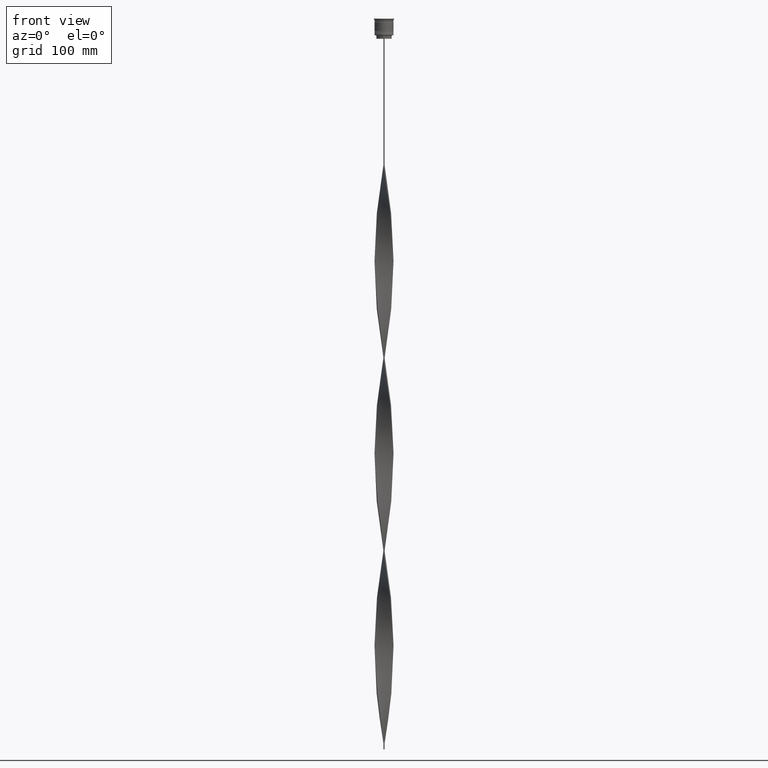
[diagram: clean part render]
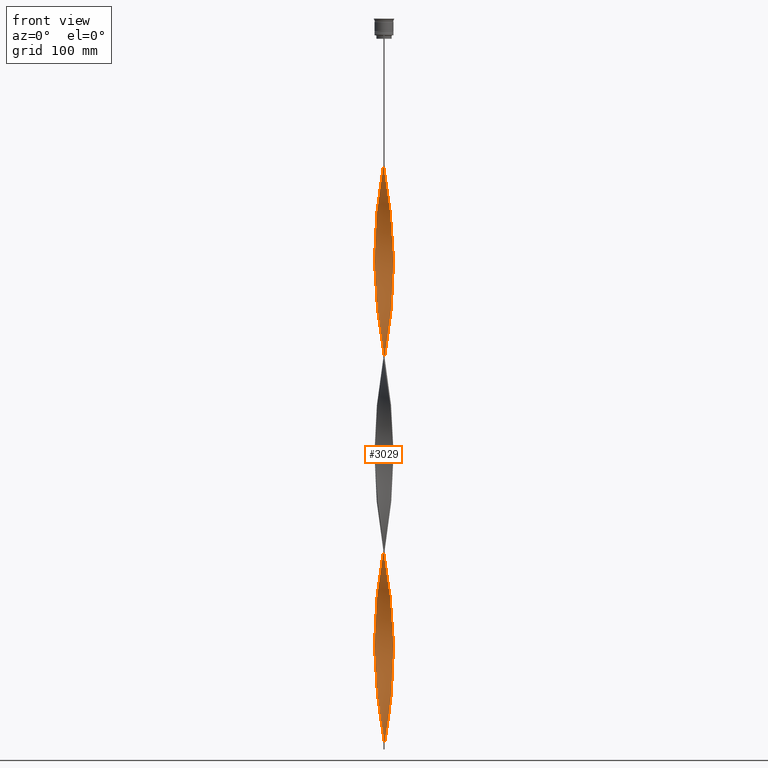
[diagram: same view with one face highlighted and labeled with its STEP entity id]
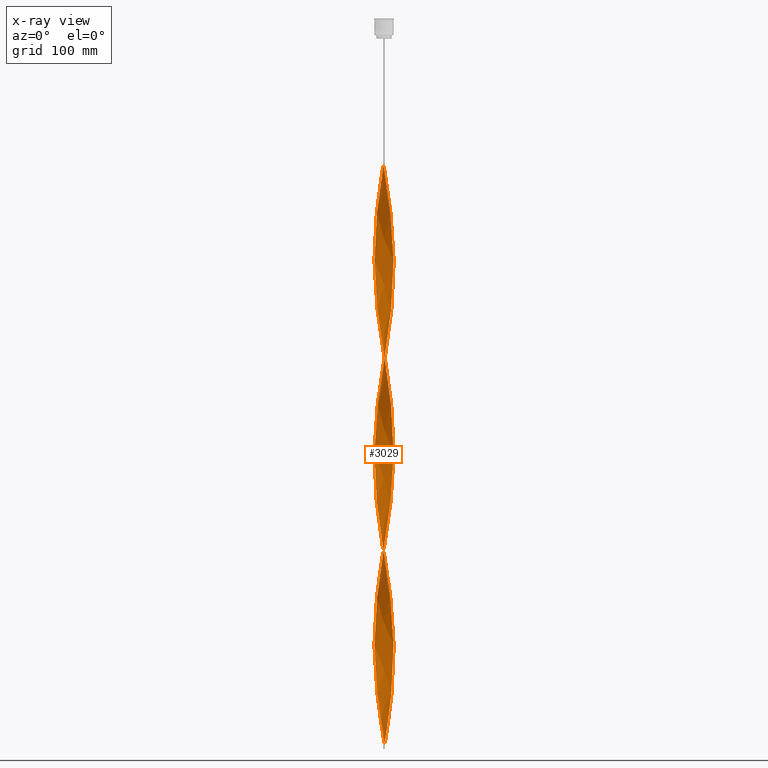
[diagram: x-ray of the same camera — body ghosted, the highlighted face saturated]
A machine part, front view. The second image highlights one B-rep face of the part: STEP entity #3029.
The next image is the same camera in x-ray: the body ghosted, the highlighted face saturated — about 0% of this face is hidden behind the body in this view.
In plain terms, the highlighted face is a freeform B-spline surface patch.
Its self-contained STEP definition (entity closure, byte-faithful):
#7 = CARTESIAN_POINT ( 'NONE',  ( -7.265667412356201282, 3.422629830937727213, -178.0800000000000125 ) ) ;
#25 = CARTESIAN_POINT ( 'NONE',  ( 7.764607348536642029, 1.990194142050144555, -375.7199999999999704 ) ) ;
#27 = CARTESIAN_POINT ( 'NONE',  ( 2.473810677883154341, -7.624320345446617964, -297.9599999999999795 ) ) ;
#28 = CARTESIAN_POINT ( 'NONE',  ( 3.409884664421549250, 7.254149610763675149, -589.5600000000000591 ) ) ;
#31 = CARTESIAN_POINT ( 'NONE',  ( 3.409884664421549250, 7.254149610763675149, -265.5600000000000023 ) ) ;
#51 = CARTESIAN_POINT ( 'NONE',  ( 7.888576536432224451, 1.508203612066593147, -216.9600000000000080 ) ) ;
#75 = CARTESIAN_POINT ( 'NONE',  ( -2.480108178533302343, 7.622274163448351736, -304.4400000000000546 ) ) ;
#89 = CARTESIAN_POINT ( 'NONE',  ( 1.994129100314147918, 7.779959321094169766, -599.2800000000000864 ) ) ;
#92 = CARTESIAN_POINT ( 'NONE',  ( -1.505227516754525485, 7.873010232611480141, -297.9599999999999795 ) ) ;
#109 = CARTESIAN_POINT ( 'NONE',  ( 1.009899697685191944, 7.967711120969122263, -437.2800000000000864 ) ) ;
#111 = CARTESIAN_POINT ( 'NONE',  ( 6.186229683506279997, -5.121999629979041124, -327.1200000000000614 ) ) ;
#119 = CARTESIAN_POINT ( 'NONE',  ( 3.872091084340840705, -7.036421572160664439, -152.1599999999999966 ) ) ;
#130 = CARTESIAN_POINT ( 'NONE',  ( 2.473810677883154341, -7.624320345446617964, -297.9599999999999795 ) ) ;
#133 = CARTESIAN_POINT ( 'NONE',  ( 0.5066085178571909653, 7.999584227297972916, -440.5200000000000387 ) ) ;
#141 = CARTESIAN_POINT ( 'NONE',  ( -2.473810677883152120, -7.624320345446626845, -434.0400000000000205 ) ) ;
#144 = CARTESIAN_POINT ( 'NONE',  ( 3.409884664421549250, 7.254149610763675149, -265.5600000000000023 ) ) ;
#153 = CARTESIAN_POINT ( 'NONE',  ( -4.297773521152310039, -6.766028581145813625, -576.6000000000000227 ) ) ;
#156 = CARTESIAN_POINT ( 'NONE',  ( 3.409884664421550582, -7.254149610763668043, -304.4400000000000546 ) ) ;
#157 = CARTESIAN_POINT ( 'NONE',  ( 7.762960627548698866, -1.996607696852002345, -349.8000000000000114 ) ) ;
#165 = CARTESIAN_POINT ( 'NONE',  ( -7.268492320028115294, 3.416626596555744744, -346.5599999999999454 ) ) ;
#168 = CARTESIAN_POINT ( 'NONE',  ( 1.003317338029196426, 7.968542666373180872, -281.7599999999999909 ) ) ;
#182 = CARTESIAN_POINT ( 'NONE',  ( -3.872091084340837153, -7.036421572160659110, -255.8399999999999750 ) ) ;
#185 = CARTESIAN_POINT ( 'NONE',  ( -4.292182732835652992, 6.769576603300047957, -472.9200000000000159 ) ) ;
#197 = CARTESIAN_POINT ( 'NONE',  ( -6.779406190655036468, -4.306270963224208437, -398.4000000000000909 ) ) ;
#199 = CARTESIAN_POINT ( 'NONE',  ( -7.889819750753897409, 1.501686454361711220, -359.5200000000000387 ) ) ;
#208 = CARTESIAN_POINT ( 'NONE',  ( -6.782961227863126830, -4.300669120951438273, -553.9200000000001864 ) ) ;
#218 = CARTESIAN_POINT ( 'NONE',  ( -2.953492255452155657, -7.468681369799083924, -430.8000000000000682 ) ) ;
#220 = CARTESIAN_POINT ( 'NONE',  ( 8.015609087190831872, 0.003310792020371779686, -207.2400000000000091 ) ) ;
#231 = CARTESIAN_POINT ( 'NONE',  ( -5.845393947331967155, -5.484648539377411147, -563.6399999999999864 ) ) ;
#235 = EDGE_CURVE ( 'NONE', #1144, #2329, #557, .T. ) ;
#238 = CARTESIAN_POINT ( 'NONE',  ( 3.415876052791792628, -7.251330277401769386, -472.9200000000000159 ) ) ;
#240 = CARTESIAN_POINT ( 'NONE',  ( 7.762960627548705084, 1.996607696852005009, -220.2000000000000171 ) ) ;
#251 = CARTESIAN_POINT ( 'NONE',  ( -7.639394946319396418, -2.478701829738567231, -540.9600000000001501 ) ) ;
#263 = CARTESIAN_POINT ( 'NONE',  ( 2.953492255452158766, 7.468681369799082148, -592.8000000000001819 ) ) ;
#264 = CARTESIAN_POINT ( 'NONE',  ( -7.951988663122369516, 1.007906891321451281, -194.2800000000000011 ) ) ;
#265 = CARTESIAN_POINT ( 'NONE',  ( -5.840861161140214364, -5.489475466406953608, -408.1200000000000614 ) ) ;
#284 = CARTESIAN_POINT ( 'NONE',  ( 6.779406190655039133, 4.306270963224203108, -560.3999999999999773 ) ) ;
#286 = CARTESIAN_POINT ( 'NONE',  ( -6.782961227863126830, -4.300669120951438273, -229.9200000000000443 ) ) ;
#288 = CARTESIAN_POINT ( 'NONE',  ( 2.480108178533299679, -7.622274163448352624, -466.4399999999999977 ) ) ;
#301 = EDGE_CURVE ( 'NONE', #3886, #2329, #1925, .T. ) ;
#305 = CARTESIAN_POINT ( 'NONE',  ( 7.637344718665186605, 2.485011781637414874, -547.4400000000001683 ) ) ;
#307 = CARTESIAN_POINT ( 'NONE',  ( 0.003317338029198459159, -8.031457333626830675, -450.2400000000000659 ) ) ;
#325 = VECTOR ( 'NONE', #1480, 1000.000000000000000 ) ;
#326 = CARTESIAN_POINT ( 'NONE',  ( 7.951988663122374845, 1.007906891321455056, -537.7200000000000273 ) ) ;
#329 = CARTESIAN_POINT ( 'NONE',  ( -5.106790515527257490, -6.178243328853349148, -414.6000000000000227 ) ) ;
#347 = CARTESIAN_POINT ( 'NONE',  ( -3.866277073390937957, 7.039617851728262821, -145.6800000000000352 ) ) ;
#348 = CARTESIAN_POINT ( 'NONE',  ( -6.186229683506279997, 5.121999629979041124, -165.1200000000000045 ) ) ;
#349 = CARTESIAN_POINT ( 'NONE',  ( -0.4999999999999998890, -8.000000000000003553, -447.0000000000000000 ) ) ;
#352 = FACE_OUTER_BOUND ( 'NONE', #1262, .T. ) ;
#366 = CARTESIAN_POINT ( 'NONE',  ( 4.718088392280368915, -6.499535354871832205, -314.1599999999999682 ) ) ;
#368 = CARTESIAN_POINT ( 'NONE',  ( 7.025726773945618397, 3.858647858753588622, -388.6800000000000068 ) ) ;
#387 = CARTESIAN_POINT ( 'NONE',  ( 7.451506065510691279, -2.953820806287565937, -343.3199999999999932 ) ) ;
#391 = CARTESIAN_POINT ( 'NONE',  ( 0.4999999999999972800, 8.000000000000003553, -285.0000000000000568 ) ) ;
#396 = CARTESIAN_POINT ( 'NONE',  ( 4.297773521152313592, -6.766028581145818954, -155.4000000000000057 ) ) ;
#404 = CARTESIAN_POINT ( 'NONE',  ( -5.500329109473821809, -5.852409554540300540, -566.8799999999999955 ) ) ;
#413 = CARTESIAN_POINT ( 'NONE',  ( -5.111892533718807030, 6.174022572335639225, -323.8799999999999955 ) ) ;
#423 = CARTESIAN_POINT ( 'NONE',  ( -0.5066085178571934078, -7.999584227297972916, -602.5200000000000955 ) ) ;
#433 = CARTESIAN_POINT ( 'NONE',  ( 4.723455957963786922, -6.495635590130975245, -158.6399999999999864 ) ) ;
#436 = LINE ( 'NONE', #1142, #325 ) ;
#443 = CARTESIAN_POINT ( 'NONE',  ( -6.782961227863126830, -4.300669120951438273, -553.9200000000000728 ) ) ;
#447 = CARTESIAN_POINT ( 'NONE',  ( 2.959661021242737888, 7.466238982642870781, -424.3200000000000500 ) ) ;
#455 = CARTESIAN_POINT ( 'NONE',  ( 2.480108178533299679, -7.622274163448352624, -142.4399999999999977 ) ) ;
#466 = CARTESIAN_POINT ( 'NONE',  ( -6.486710006526618777, -4.708778322582980458, -557.1600000000000819 ) ) ;
#469 = CARTESIAN_POINT ( 'NONE',  ( -0.003317338029196073481, -8.031457333626821793, -281.7600000000000477 ) ) ;
#470 = CARTESIAN_POINT ( 'NONE',  ( 6.782961227863125941, 4.300669120951440050, -391.9200000000001296 ) ) ;
#478 = CARTESIAN_POINT ( 'NONE',  ( -5.840861161140214364, -5.489475466406953608, -408.1200000000000614 ) ) ;
#481 = CARTESIAN_POINT ( 'NONE',  ( -1.009899697685193942, 7.967711120969127592, -294.7199999999999704 ) ) ;
#491 = CARTESIAN_POINT ( 'NONE',  ( -2.000555335823850367, -7.778309344253826474, -268.8000000000001251 ) ) ;
#493 = CARTESIAN_POINT ( 'NONE',  ( 4.718088392280368915, -6.499535354871832205, -314.1599999999999682 ) ) ;
#498 = CARTESIAN_POINT ( 'NONE',  ( -0.4999999999999998890, -8.000000000000003553, -123.0000000000000000 ) ) ;
#502 = CARTESIAN_POINT ( 'NONE',  ( -8.015817384569144721, 0.5009885865355727663, -365.9999999999999432 ) ) ;
#505 = CARTESIAN_POINT ( 'NONE',  ( 7.453943633173757632, -2.947664213147156875, -187.8000000000000114 ) ) ;
#517 = CARTESIAN_POINT ( 'NONE',  ( 7.888576536432219122, -1.508203612066588484, -353.0400000000000205 ) ) ;
#518 = CARTESIAN_POINT ( 'NONE',  ( -3.409884664421547917, 7.254149610763668043, -466.4399999999999977 ) ) ;
#527 =( BOUNDED_SURFACE ( )  B_SPLINE_SURFACE ( 1, 2, ( 
 ( #4222, #2861, #3219, #2839, #2177, #3558, #455, #1799, #2545, #119, #1457, #433, #2459, #3842, #2521, #802, #1417, #3540, #1842, #4180, #1118, #4243, #3176, #3884, #778, #1501, #2478, #2882, #2199, #51, #3584, #4265, #3928, #1163, #824, #1757, #1138, #1095, #2501, #740, #2158, #1820, #3133, #2798, #31, #3195, #1076, #2118, #1435, #3497, #391, #1778, #3154, #2821, #92, #1476, #75, #4203, #3859, #759, #2139, #3517, #413, #1238, #3630, #2568, #2321, #4354, #578, #165, #4307, #3344, #1257, #4376, #2661, #502, #2637, #2250, #1281, #1863, #2618, #2978, #1887, #1940, #4046, #197, #941, #3320, #478, #3241, #2902, #1603, #1578, #4285, #4027, #218, #141, #920, #4004, #2954, #897, #528, #3953, #1524, #2298, #1963, #1549, #1212, #238, #3682, #1186, #846, #3268, #1623, #1912, #2221, #3606, #2274, #3000, #2929, #2593, #3979, #4335, #874, #3296, #3657, #555, #1646, #326, #3411, #3019, #305, #1389, #687, #2387, #284, #2685, #1321, #4091, #1688, #2341, #2704, #4069, #3430, #1732, #263, #3775, #4396, #3062, #1981, #620 ),
 ( #2029, #1348, #1367, #3751, #3087, #1301, #4152, #347, #1048, #4438, #1711, #2073, #2726, #4131, #1024, #2406, #643, #7, #3452, #4110, #665, #962, #3727, #4460, #2747, #3365, #1005, #3797, #2005, #2047, #3108, #2767, #3704, #596, #3388, #4417, #1669, #3040, #984, #2364, #2583, #182, #3966, #3283, #3257, #491, #1774, #3230, #3128, #469, #2895, #2237, #2093, #863, #130, #4321, #156, #735, #3474, #366, #1568, #1879, #1411, #1516, #2211, #2534, #3619, #711, #387, #1855, #2186, #517, #3595, #2431, #2942, #2113, #1902, #1751, #25, #3572, #2555, #2792, #4175, #1538, #3817, #1069, #2917, #4277, #1175, #4254, #3491, #2453, #4299, #836, #3940, #3151, #3838, #109, #3917, #1490, #2873, #1154, #814, #1202, #569, #545, #4081, #1639, #931, #1314, #1929, #1974, #4348, #2992, #4062, #2675, #4016, #1658, #4367, #3717, #953, #1250, #3310, #2630, #1953, #3335, #3013, #2333, #1273, #251, #3357, #1592, #4388, #208, #4409, #1292, #231, #973, #911, #3991, #888, #2970, #2265, #2291, #3673, #3644, #1615, #609, #4040, #2357, #2695 ) ),
 .UNSPECIFIED., .F., .F., .F. ) 
 B_SPLINE_SURFACE_WITH_KNOTS ( ( 2, 2 ),
 ( 3, 2, 2, 2, 2, 2, 2, 2, 2, 2, 2, 2, 2, 2, 2, 2, 2, 2, 2, 2, 2, 2, 2, 2, 2, 2, 2, 2, 2, 2, 2, 2, 2, 2, 2, 2, 2, 2, 2, 2, 2, 2, 2, 2, 2, 2, 2, 2, 2, 2, 2, 2, 2, 2, 2, 2, 2, 2, 2, 2, 2, 2, 2, 2, 2, 2, 2, 2, 2, 2, 2, 2, 2, 2, 2, 3 ),
 ( 0.000000000000000000, 1.000000000000000000 ),
 ( 0.000000000000000000, 0.01000000000000000021, 0.02000000000000000042, 0.02999999999999999889, 0.04000000000000000083, 0.05000000000000000278, 0.05999999999999999778, 0.07000000000000000666, 0.08000000000000000167, 0.08999999999999999667, 0.1000000000000000056, 0.1100000000000000006, 0.1199999999999999956, 0.1300000000000000044, 0.1400000000000000133, 0.1499999999999999944, 0.1600000000000000033, 0.1700000000000000122, 0.1799999999999999933, 0.1900000000000000022, 0.2000000000000000111, 0.2099999999999999922, 0.2200000000000000011, 0.2300000000000000100, 0.2399999999999999911, 0.2500000000000000000, 0.2600000000000000089, 0.2700000000000000178, 0.2800000000000000266, 0.2899999999999999800, 0.2999999999999999889, 0.3099999999999999978, 0.3200000000000000067, 0.3300000000000000155, 0.3400000000000000244, 0.3499999999999999778, 0.3599999999999999867, 0.3699999999999999956, 0.3800000000000000044, 0.3900000000000000133, 0.4000000000000000222, 0.4099999999999999756, 0.4199999999999999845, 0.4299999999999999933, 0.4400000000000000022, 0.4500000000000000111, 0.4600000000000000200, 0.4699999999999999734, 0.4799999999999999822, 0.4899999999999999911, 0.5000000000000000000, 0.5100000000000000089, 0.5200000000000000178, 0.5300000000000000266, 0.5400000000000000355, 0.5500000000000000444, 0.5600000000000000533, 0.5699999999999999512, 0.5799999999999999600, 0.5899999999999999689, 0.5999999999999999778, 0.6099999999999999867, 0.6199999999999999956, 0.6300000000000000044, 0.6400000000000000133, 0.6500000000000000222, 0.6600000000000000311, 0.6700000000000000400, 0.6800000000000000488, 0.6899999999999999467, 0.6999999999999999556, 0.7099999999999999645, 0.7199999999999999734, 0.7299999999999999822, 0.7399999999999999911, 0.7500000000000000000 ),
 .UNSPECIFIED. ) 
 GEOMETRIC_REPRESENTATION_ITEM ( )  RATIONAL_B_SPLINE_SURFACE ( (
 ( 1.000000000000000000, 0.9980267284282715590, 1.000000000000000000, 0.9980267284282715590, 1.000000000000000000, 0.9980267284282715590, 1.000000000000000000, 0.9980267284282715590, 1.000000000000000000, 0.9980267284282715590, 1.000000000000000000, 0.9980267284282715590, 1.000000000000000000, 0.9980267284282715590, 1.000000000000000000, 0.9980267284282715590, 1.000000000000000000, 0.9980267284282715590, 1.000000000000000000, 0.9980267284282715590, 1.000000000000000000, 0.9980267284282715590, 1.000000000000000000, 0.9980267284282715590, 1.000000000000000000, 0.9980267284282715590, 1.000000000000000000, 0.9980267284282715590, 1.000000000000000000, 0.9980267284282715590, 1.000000000000000000, 0.9980267284282715590, 1.000000000000000000, 0.9980267284282715590, 1.000000000000000000, 0.9980267284282715590, 1.000000000000000000, 0.9980267284282715590, 1.000000000000000000, 0.9980267284282715590, 1.000000000000000000, 0.9980267284282715590, 1.000000000000000000, 0.9980267284282715590, 1.000000000000000000, 0.9980267284282715590, 1.000000000000000000, 0.9980267284282715590, 1.000000000000000000, 0.9980267284282715590, 1.000000000000000000, 0.9980267284282715590, 1.000000000000000000, 0.9980267284282715590, 1.000000000000000000, 0.9980267284282715590, 1.000000000000000000, 0.9980267284282715590, 1.000000000000000000, 0.9980267284282715590, 1.000000000000000000, 0.9980267284282715590, 1.000000000000000000, 0.9980267284282715590, 1.000000000000000000, 0.9980267284282715590, 1.000000000000000000, 0.9980267284282715590, 1.000000000000000000, 0.9980267284282715590, 1.000000000000000000, 0.9980267284282715590, 1.000000000000000000, 0.9980267284282715590, 1.000000000000000000, 0.9980267284282715590, 1.000000000000000000, 0.9980267284282715590, 1.000000000000000000, 0.9980267284282715590, 1.000000000000000000, 0.9980267284282715590, 1.000000000000000000, 0.9980267284282715590, 1.000000000000000000, 0.9980267284282715590, 1.000000000000000000, 0.9980267284282715590, 1.000000000000000000, 0.9980267284282715590, 1.000000000000000000, 0.9980267284282715590, 1.000000000000000000, 0.9980267284282715590, 1.000000000000000000, 0.9980267284282715590, 1.000000000000000000, 0.9980267284282715590, 1.000000000000000000, 0.9980267284282715590, 1.000000000000000000, 0.9980267284282715590, 1.000000000000000000, 0.9980267284282715590, 1.000000000000000000, 0.9980267284282715590, 1.000000000000000000, 0.9980267284282715590, 1.000000000000000000, 0.9980267284282715590, 1.000000000000000000, 0.9980267284282715590, 1.000000000000000000, 0.9980267284282715590, 1.000000000000000000, 0.9980267284282715590, 1.000000000000000000, 0.9980267284282715590, 1.000000000000000000, 0.9980267284282715590, 1.000000000000000000, 0.9980267284282715590, 1.000000000000000000, 0.9980267284282715590, 1.000000000000000000, 0.9980267284282715590, 1.000000000000000000, 0.9980267284282715590, 1.000000000000000000, 0.9980267284282715590, 1.000000000000000000, 0.9980267284282715590, 1.000000000000000000, 0.9980267284282715590, 1.000000000000000000, 0.9980267284282715590, 1.000000000000000000, 0.9980267284282715590, 1.000000000000000000, 0.9980267284282715590, 1.000000000000000000, 0.9980267284282715590, 1.000000000000000000, 0.9980267284282715590, 1.000000000000000000, 0.9980267284282715590, 1.000000000000000000, 0.9980267284282715590, 1.000000000000000000, 0.9980267284282715590, 1.000000000000000000),
 ( 1.000000000000000000, 0.9980267284282715590, 1.000000000000000000, 0.9980267284282715590, 1.000000000000000000, 0.9980267284282715590, 1.000000000000000000, 0.9980267284282715590, 1.000000000000000000, 0.9980267284282715590, 1.000000000000000000, 0.9980267284282715590, 1.000000000000000000, 0.9980267284282715590, 1.000000000000000000, 0.9980267284282715590, 1.000000000000000000, 0.9980267284282715590, 1.000000000000000000, 0.9980267284282715590, 1.000000000000000000, 0.9980267284282715590, 1.000000000000000000, 0.9980267284282715590, 1.000000000000000000, 0.9980267284282715590, 1.000000000000000000, 0.9980267284282715590, 1.000000000000000000, 0.9980267284282715590, 1.000000000000000000, 0.9980267284282715590, 1.000000000000000000, 0.9980267284282715590, 1.000000000000000000, 0.9980267284282715590, 1.000000000000000000, 0.9980267284282715590, 1.000000000000000000, 0.9980267284282715590, 1.000000000000000000, 0.9980267284282715590, 1.000000000000000000, 0.9980267284282715590, 1.000000000000000000, 0.9980267284282715590, 1.000000000000000000, 0.9980267284282715590, 1.000000000000000000, 0.9980267284282715590, 1.000000000000000000, 0.9980267284282715590, 1.000000000000000000, 0.9980267284282715590, 1.000000000000000000, 0.9980267284282715590, 1.000000000000000000, 0.9980267284282715590, 1.000000000000000000, 0.9980267284282715590, 1.000000000000000000, 0.9980267284282715590, 1.000000000000000000, 0.9980267284282715590, 1.000000000000000000, 0.9980267284282715590, 1.000000000000000000, 0.9980267284282715590, 1.000000000000000000, 0.9980267284282715590, 1.000000000000000000, 0.9980267284282715590, 1.000000000000000000, 0.9980267284282715590, 1.000000000000000000, 0.9980267284282715590, 1.000000000000000000, 0.9980267284282715590, 1.000000000000000000, 0.9980267284282715590, 1.000000000000000000, 0.9980267284282715590, 1.000000000000000000, 0.9980267284282715590, 1.000000000000000000, 0.9980267284282715590, 1.000000000000000000, 0.9980267284282715590, 1.000000000000000000, 0.9980267284282715590, 1.000000000000000000, 0.9980267284282715590, 1.000000000000000000, 0.9980267284282715590, 1.000000000000000000, 0.9980267284282715590, 1.000000000000000000, 0.9980267284282715590, 1.000000000000000000, 0.9980267284282715590, 1.000000000000000000, 0.9980267284282715590, 1.000000000000000000, 0.9980267284282715590, 1.000000000000000000, 0.9980267284282715590, 1.000000000000000000, 0.9980267284282715590, 1.000000000000000000, 0.9980267284282715590, 1.000000000000000000, 0.9980267284282715590, 1.000000000000000000, 0.9980267284282715590, 1.000000000000000000, 0.9980267284282715590, 1.000000000000000000, 0.9980267284282715590, 1.000000000000000000, 0.9980267284282715590, 1.000000000000000000, 0.9980267284282715590, 1.000000000000000000, 0.9980267284282715590, 1.000000000000000000, 0.9980267284282715590, 1.000000000000000000, 0.9980267284282715590, 1.000000000000000000, 0.9980267284282715590, 1.000000000000000000, 0.9980267284282715590, 1.000000000000000000, 0.9980267284282715590, 1.000000000000000000, 0.9980267284282715590, 1.000000000000000000, 0.9980267284282715590, 1.000000000000000000, 0.9980267284282715590, 1.000000000000000000, 0.9980267284282715590, 1.000000000000000000, 0.9980267284282715590, 1.000000000000000000, 0.9980267284282715590, 1.000000000000000000, 0.9980267284282715590, 1.000000000000000000, 0.9980267284282715590, 1.000000000000000000) ) ) 
 REPRESENTATION_ITEM ( '' )  SURFACE ( )  );
#528 = CARTESIAN_POINT ( 'NONE',  ( 0.003317338029198458726, -8.031457333626828898, -450.2400000000000659 ) ) ;
#529 = CARTESIAN_POINT ( 'NONE',  ( 0.4999999999999990563, 2.666666666666670515, -609.0000000000000000 ) ) ;
#530 = CARTESIAN_POINT ( 'NONE',  ( -2.480108178533302343, 7.622274163448351736, -304.4400000000000546 ) ) ;
#545 = CARTESIAN_POINT ( 'NONE',  ( -2.953492255452158766, 7.468681369799075043, -463.2000000000000455 ) ) ;
#555 = CARTESIAN_POINT ( 'NONE',  ( 8.015609087190831872, 0.003310792020371779686, -531.2400000000000091 ) ) ;
#557 = B_SPLINE_CURVE_WITH_KNOTS ( 'NONE', 3,
 ( #2251, #529, #3297, #1579 ),
 .UNSPECIFIED., .F., .F.,
 ( 4, 4 ),
 ( 0.000000000000000000, 1.000000000000000000 ),
 .UNSPECIFIED. ) ;
#558 = CARTESIAN_POINT ( 'NONE',  ( 7.889819750753897409, -1.501686454361715439, -197.5200000000000387 ) ) ;
#569 = CARTESIAN_POINT ( 'NONE',  ( -2.473810677883152565, 7.624320345446617964, -459.9600000000000364 ) ) ;
#578 = CARTESIAN_POINT ( 'NONE',  ( -7.025726773945625503, 3.858647858753588622, -343.3199999999999932 ) ) ;
#580 = CARTESIAN_POINT ( 'NONE',  ( 4.718088392280371579, 6.499535354871838422, -255.8400000000000034 ) ) ;
#596 = CARTESIAN_POINT ( 'NONE',  ( -6.782961227863126830, -4.300669120951438273, -229.9200000000000443 ) ) ;
#597 = CARTESIAN_POINT ( 'NONE',  ( -6.779406190655034692, 4.306270963224198667, -171.6000000000000227 ) ) ;
#598 = CARTESIAN_POINT ( 'NONE',  ( -8.015400789812524351, -0.5076101705763139682, -372.4800000000000750 ) ) ;
#609 = CARTESIAN_POINT ( 'NONE',  ( -1.009899697685191056, -7.967711120969122263, -599.2799999999999727 ) ) ;
#620 = CARTESIAN_POINT ( 'NONE',  ( 0.4999999999999972800, 8.000000000000003553, -609.0000000000000000 ) ) ;
#623 = CARTESIAN_POINT ( 'NONE',  ( -7.022536801505616211, 3.864450397080963384, -174.8400000000000034 ) ) ;
#624 = CARTESIAN_POINT ( 'NONE',  ( -7.762960627548706860, -1.996607696852001901, -382.2000000000000455 ) ) ;
#629 = ORIENTED_EDGE ( 'NONE', *, *, #3541, .T. ) ;
#643 = CARTESIAN_POINT ( 'NONE',  ( -7.022536801505616211, 3.864450397080963384, -174.8400000000000034 ) ) ;
#646 = CARTESIAN_POINT ( 'NONE',  ( 8.015817384569142945, -0.5009885865355698797, -528.0000000000000000 ) ) ;
#665 = CARTESIAN_POINT ( 'NONE',  ( -7.762960627548698866, 1.996607696852001457, -187.8000000000000114 ) ) ;
#667 = CARTESIAN_POINT ( 'NONE',  ( -2.000555335823850367, -7.778309344253826474, -268.8000000000000682 ) ) ;
#668 = CARTESIAN_POINT ( 'NONE',  ( 7.453943633173757632, -2.947664213147156875, -511.8000000000000114 ) ) ;
#687 = CARTESIAN_POINT ( 'NONE',  ( 7.265667412356205723, 3.422629830937732986, -553.9200000000001864 ) ) ;
#690 = CARTESIAN_POINT ( 'NONE',  ( 6.486710006526624994, -4.708778322582981346, -498.8400000000000318 ) ) ;
#711 = CARTESIAN_POINT ( 'NONE',  ( 7.265667412356200394, -3.422629830937728102, -340.0800000000000978 ) ) ;
#712 = CARTESIAN_POINT ( 'NONE',  ( 1.003317338029197758, -7.968542666373173766, -288.2400000000001228 ) ) ;
#722 = CARTESIAN_POINT ( 'NONE',  ( 1.505227516754523709, -7.873010232611480141, -135.9600000000000080 ) ) ;
#735 = CARTESIAN_POINT ( 'NONE',  ( 3.866277073390937513, -7.039617851728263709, -307.6800000000000637 ) ) ;
#740 = CARTESIAN_POINT ( 'NONE',  ( 5.495492638774148730, 5.856951302834855433, -249.3600000000000136 ) ) ;
#743 = CARTESIAN_POINT ( 'NONE',  ( 2.959661021242744994, -7.466238982642876998, -145.6800000000000352 ) ) ;
#759 = CARTESIAN_POINT ( 'NONE',  ( -3.872091084340841594, 7.036421572160663551, -314.1599999999999682 ) ) ;
#778 = CARTESIAN_POINT ( 'NONE',  ( 7.952818567661520177, -1.001337520448642326, -200.7599999999999909 ) ) ;
#790 = CARTESIAN_POINT ( 'NONE',  ( -8.015609087190826543, 0.003310792020370478643, -524.7599999999999909 ) ) ;
#795 = CARTESIAN_POINT ( 'NONE',  ( 7.888576536432219122, -1.508203612066588484, -353.0400000000000205 ) ) ;
#802 = CARTESIAN_POINT ( 'NONE',  ( 6.190458785190118718, -5.116887524214525307, -171.6000000000000512 ) ) ;
#811 = CARTESIAN_POINT ( 'NONE',  ( -3.415876052791788187, -7.251330277401763169, -583.0800000000000409 ) ) ;
#814 = CARTESIAN_POINT ( 'NONE',  ( -1.498723219171672616, 7.874250993733667769, -453.4800000000000750 ) ) ;
#816 = CARTESIAN_POINT ( 'NONE',  ( 5.106790515527258378, -6.178243328853338490, -317.4000000000000341 ) ) ;
#824 = CARTESIAN_POINT ( 'NONE',  ( 7.022536801505621540, 3.864450397080969601, -233.1599999999999966 ) ) ;
#827 = CARTESIAN_POINT ( 'NONE',  ( 7.265667412356205723, 3.422629830937732986, -229.9200000000000443 ) ) ;
#834 = CARTESIAN_POINT ( 'NONE',  ( -4.723455957963780705, -6.495635590130970805, -573.3600000000001273 ) ) ;
#836 = CARTESIAN_POINT ( 'NONE',  ( 2.959661021242737888, 7.466238982642869892, -424.3200000000000500 ) ) ;
#838 = CARTESIAN_POINT ( 'NONE',  ( 7.451506065510691279, -2.953820806287565937, -343.3199999999999932 ) ) ;
#846 = CARTESIAN_POINT ( 'NONE',  ( 4.723455957963786922, -6.495635590130975245, -482.6400000000001000 ) ) ;
#850 = CARTESIAN_POINT ( 'NONE',  ( 7.637344718665187493, 2.485011781637414874, -223.4399999999999977 ) ) ;
#863 = CARTESIAN_POINT ( 'NONE',  ( 1.994129100314148140, -7.779959321094161773, -294.7199999999999136 ) ) ;
#866 = CARTESIAN_POINT ( 'NONE',  ( 7.453943633173752303, 2.947664213147153767, -382.2000000000000455 ) ) ;
#874 = CARTESIAN_POINT ( 'NONE',  ( 7.889819750753897409, -1.501686454361715661, -521.5200000000002092 ) ) ;
#877 = CARTESIAN_POINT ( 'NONE',  ( 6.779406190655039133, 4.306270963224203108, -236.4000000000000341 ) ) ;
#888 = CARTESIAN_POINT ( 'NONE',  ( -4.297773521152310039, -6.766028581145813625, -576.6000000000000227 ) ) ;
#889 = CARTESIAN_POINT ( 'NONE',  ( -7.022536801505616211, 3.864450397080963384, -498.8400000000000318 ) ) ;
#897 = CARTESIAN_POINT ( 'NONE',  ( -0.4999999999999998890, -8.000000000000003553, -447.0000000000000000 ) ) ;
#899 = CARTESIAN_POINT ( 'NONE',  ( 7.951988663122374845, 1.007906891321455056, -213.7200000000000273 ) ) ;
#911 = CARTESIAN_POINT ( 'NONE',  ( -5.111892533718799925, -6.174022572335634784, -570.1200000000000045 ) ) ;
#920 = CARTESIAN_POINT ( 'NONE',  ( -1.994129100314148584, -7.779959321094168878, -437.2800000000000864 ) ) ;
#922 = CARTESIAN_POINT ( 'NONE',  ( 8.015400789812524351, 0.5076101705763153005, -210.4800000000000182 ) ) ;
#931 = CARTESIAN_POINT ( 'NONE',  ( -4.292182732835652992, 6.769576603300047957, -472.9200000000000159 ) ) ;
#941 = CARTESIAN_POINT ( 'NONE',  ( -6.482817937080660009, -4.714135296601627445, -401.6399999999999864 ) ) ;
#943 = CARTESIAN_POINT ( 'NONE',  ( 7.637344718665187493, 2.485011781637414874, -547.4400000000001683 ) ) ;
#953 = CARTESIAN_POINT ( 'NONE',  ( -7.762960627548698866, 1.996607696852001457, -511.8000000000000114 ) ) ;
#962 = CARTESIAN_POINT ( 'NONE',  ( -7.888576536432217345, 1.508203612066590482, -191.0400000000000205 ) ) ;
#963 = CARTESIAN_POINT ( 'NONE',  ( -3.409884664421547917, 7.254149610763668043, -142.4399999999999977 ) ) ;
#965 = CARTESIAN_POINT ( 'NONE',  ( 6.186229683506284438, 5.121999629979047342, -566.8799999999999955 ) ) ;
#973 = CARTESIAN_POINT ( 'NONE',  ( -5.500329109473821809, -5.852409554540300540, -566.8799999999999955 ) ) ;
#984 = CARTESIAN_POINT ( 'NONE',  ( -5.111892533718799925, -6.174022572335634784, -246.1200000000000045 ) ) ;
#986 = CARTESIAN_POINT ( 'NONE',  ( -1.498723219171672616, 7.874250993733667769, -129.4800000000000182 ) ) ;
#987 = CARTESIAN_POINT ( 'NONE',  ( 7.268492320028114406, -3.416626596555745188, -508.5600000000001160 ) ) ;
#1005 = CARTESIAN_POINT ( 'NONE',  ( -7.952818567661513960, -1.001337520448642771, -207.2400000000000091 ) ) ;
#1006 = CARTESIAN_POINT ( 'NONE',  ( -7.762960627548698866, 1.996607696852001457, -187.8000000000000114 ) ) ;
#1008 = CARTESIAN_POINT ( 'NONE',  ( -3.866277073390937069, -7.039617851728272591, -424.3200000000000500 ) ) ;
#1024 = CARTESIAN_POINT ( 'NONE',  ( -6.482817937080656456, 4.714135296601620340, -168.3600000000000136 ) ) ;
#1025 = CARTESIAN_POINT ( 'NONE',  ( -7.453943633173751415, -2.947664213147155987, -220.2000000000000171 ) ) ;
#1026 = CARTESIAN_POINT ( 'NONE',  ( 1.009899697685192832, -7.967711120969127592, -456.7200000000000841 ) ) ;
#1048 = CARTESIAN_POINT ( 'NONE',  ( -4.292182732835652992, 6.769576603300047957, -148.9199999999999875 ) ) ;
#1049 = CARTESIAN_POINT ( 'NONE',  ( -5.495492638774146954, 5.856951302834847439, -482.6400000000000432 ) ) ;
#1069 = CARTESIAN_POINT ( 'NONE',  ( 6.190458785190108060, 5.116887524214526195, -398.4000000000000909 ) ) ;
#1071 = CARTESIAN_POINT ( 'NONE',  ( 8.015817384569135839, 0.5009885865355696577, -366.0000000000000000 ) ) ;
#1072 = CARTESIAN_POINT ( 'NONE',  ( 1.003317338029196426, 7.968542666373180872, -605.7600000000001046 ) ) ;
#1076 = CARTESIAN_POINT ( 'NONE',  ( 2.473810677883154785, 7.624320345446625069, -272.0400000000000205 ) ) ;
#1085 = CARTESIAN_POINT ( 'NONE',  ( -8.015817384569135839, -0.5009885865355724333, -528.0000000000000000 ) ) ;
#1095 = CARTESIAN_POINT ( 'NONE',  ( 6.186229683506283550, 5.121999629979047342, -242.8800000000000239 ) ) ;
#1118 = CARTESIAN_POINT ( 'NONE',  ( 7.453943633173757632, -2.947664213147156875, -187.8000000000000114 ) ) ;
#1130 = CARTESIAN_POINT ( 'NONE',  ( -7.025726773945617509, -3.858647858753589510, -550.6800000000000637 ) ) ;
#1138 = CARTESIAN_POINT ( 'NONE',  ( 6.482817937080661785, 4.714135296601625669, -239.6400000000000148 ) ) ;
#1142 = CARTESIAN_POINT ( 'NONE',  ( -0.4999999999999998890, -8.000000000000003553, -123.0000000000000000 ) ) ;
#1144 = VERTEX_POINT ( 'NONE', #2023 ) ;
#1151 = CARTESIAN_POINT ( 'NONE',  ( -2.959661021242740553, -7.466238982642869892, -586.3200000000000500 ) ) ;
#1154 = CARTESIAN_POINT ( 'NONE',  ( -1.003317338029197980, 7.968542666373174654, -450.2400000000000659 ) ) ;
#1155 = CARTESIAN_POINT ( 'NONE',  ( 1.505227516754519712, 7.873010232611473036, -434.0400000000000205 ) ) ;
#1163 = CARTESIAN_POINT ( 'NONE',  ( 7.265667412356205723, 3.422629830937732986, -229.9200000000000443 ) ) ;
#1166 = CARTESIAN_POINT ( 'NONE',  ( 7.888576536432224451, 1.508203612066593147, -216.9600000000000080 ) ) ;
#1173 = CARTESIAN_POINT ( 'NONE',  ( -7.639394946319396418, -2.478701829738567675, -540.9600000000001501 ) ) ;
#1175 = CARTESIAN_POINT ( 'NONE',  ( 5.111892533718798148, 6.174022572335636561, -408.1200000000000614 ) ) ;
#1177 = CARTESIAN_POINT ( 'NONE',  ( 5.500329109473822697, 5.852409554540299652, -404.8799999999999955 ) ) ;
#1186 = CARTESIAN_POINT ( 'NONE',  ( 4.297773521152313592, -6.766028581145818954, -479.4000000000000341 ) ) ;
#1190 = CARTESIAN_POINT ( 'NONE',  ( -5.845393947331973372, 5.484648539377412924, -330.3600000000000136 ) ) ;
#1202 = CARTESIAN_POINT ( 'NONE',  ( -1.994129100314146807, 7.779959321094164437, -456.7200000000000841 ) ) ;
#1203 = CARTESIAN_POINT ( 'NONE',  ( -0.003317338029196073915, -8.031457333626823569, -281.7599999999999909 ) ) ;
#1212 = CARTESIAN_POINT ( 'NONE',  ( 2.959661021242745438, -7.466238982642876110, -469.6800000000001205 ) ) ;
#1214 = CARTESIAN_POINT ( 'NONE',  ( 7.952818567661520177, -1.001337520448642326, -200.7599999999999909 ) ) ;
#1228 = CARTESIAN_POINT ( 'NONE',  ( -7.265667412356201282, 3.422629830937727213, -502.0800000000000978 ) ) ;
#1238 = CARTESIAN_POINT ( 'NONE',  ( -5.500329109473828026, 5.852409554540304981, -327.1200000000001182 ) ) ;
#1240 = CARTESIAN_POINT ( 'NONE',  ( 6.482817937080661785, 4.714135296601625669, -239.6400000000000148 ) ) ;
#1250 = CARTESIAN_POINT ( 'NONE',  ( -7.888576536432217345, 1.508203612066590482, -515.0400000000001910 ) ) ;
#1257 = CARTESIAN_POINT ( 'NONE',  ( -7.764607348536651799, 1.990194142050141890, -356.2800000000000296 ) ) ;
#1259 = CARTESIAN_POINT ( 'NONE',  ( 5.845393947331972484, -5.484648539377413812, -168.3600000000000136 ) ) ;
#1262 = EDGE_LOOP ( 'NONE', ( #629, #2868, #1944, #2842 ) ) ;
#1273 = CARTESIAN_POINT ( 'NONE',  ( -7.764607348536642917, -1.990194142050142334, -537.7200000000000273 ) ) ;
#1281 = CARTESIAN_POINT ( 'NONE',  ( -7.951988663122374845, -1.007906891321457499, -375.7199999999999704 ) ) ;
#1283 = CARTESIAN_POINT ( 'NONE',  ( 7.888576536432224451, 1.508203612066593147, -540.9600000000001501 ) ) ;
#1292 = CARTESIAN_POINT ( 'NONE',  ( -6.190458785190113389, -5.116887524214521754, -560.3999999999999773 ) ) ;
#1301 = CARTESIAN_POINT ( 'NONE',  ( -2.953492255452158766, 7.468681369799075043, -139.1999999999999602 ) ) ;
#1303 = CARTESIAN_POINT ( 'NONE',  ( -6.486710006526618777, -4.708778322582980458, -233.1599999999999966 ) ) ;
#1304 = CARTESIAN_POINT ( 'NONE',  ( 6.779406190655039133, 4.306270963224203108, -560.3999999999999773 ) ) ;
#1314 = CARTESIAN_POINT ( 'NONE',  ( -4.718088392280368026, 6.499535354871833093, -476.1600000000000250 ) ) ;
#1321 = CARTESIAN_POINT ( 'NONE',  ( 6.186229683506283550, 5.121999629979047342, -566.8799999999999955 ) ) ;
#1322 = CARTESIAN_POINT ( 'NONE',  ( -3.872091084340837153, -7.036421572160659110, -255.8400000000000034 ) ) ;
#1323 = CARTESIAN_POINT ( 'NONE',  ( -3.409884664421550138, -7.254149610763675149, -427.5600000000000023 ) ) ;
#1348 = CARTESIAN_POINT ( 'NONE',  ( -1.003317338029197980, 7.968542666373174654, -126.2400000000000233 ) ) ;
#1349 = CARTESIAN_POINT ( 'NONE',  ( -4.297773521152310039, -6.766028581145813625, -252.6000000000000512 ) ) ;
#1350 = CARTESIAN_POINT ( 'NONE',  ( -6.482817937080660009, -4.714135296601627445, -401.6399999999999864 ) ) ;
#1367 = CARTESIAN_POINT ( 'NONE',  ( -1.498723219171672616, 7.874250993733667769, -129.4800000000000182 ) ) ;
#1369 = CARTESIAN_POINT ( 'NONE',  ( -6.482817937080656456, 4.714135296601620340, -168.3600000000000136 ) ) ;
#1371 = CARTESIAN_POINT ( 'NONE',  ( -7.637344718665185717, -2.485011781637417094, -385.4399999999999977 ) ) ;
#1389 = CARTESIAN_POINT ( 'NONE',  ( 7.451506065510694832, 2.953820806287573930, -550.6800000000000637 ) ) ;
#1390 = CARTESIAN_POINT ( 'NONE',  ( -0.4999999999999998890, 7.999999999999996447, -123.0000000000000000 ) ) ;
#1391 = CARTESIAN_POINT ( 'NONE',  ( 1.498723219171672172, 7.874250993733674875, -602.5200000000000955 ) ) ;
#1411 = CARTESIAN_POINT ( 'NONE',  ( 5.840861161140213476, -5.489475466406945614, -323.8799999999999955 ) ) ;
#1413 = CARTESIAN_POINT ( 'NONE',  ( 7.265667412356200394, -3.422629830937728102, -340.0800000000000978 ) ) ;
#1414 = CARTESIAN_POINT ( 'NONE',  ( 2.953492255452158766, 7.468681369799081260, -592.8000000000000682 ) ) ;
#1417 = CARTESIAN_POINT ( 'NONE',  ( 6.486710006526624994, -4.708778322582981346, -174.8400000000000034 ) ) ;
#1435 = CARTESIAN_POINT ( 'NONE',  ( 1.498723219171672172, 7.874250993733674875, -278.5199999999999818 ) ) ;
#1446 = CARTESIAN_POINT ( 'NONE',  ( -2.480108178533294794, -7.622274163448348183, -589.5600000000000591 ) ) ;
#1457 = CARTESIAN_POINT ( 'NONE',  ( 4.297773521152313592, -6.766028581145818954, -155.4000000000000057 ) ) ;
#1465 = CARTESIAN_POINT ( 'NONE',  ( -3.872091084340837153, -7.036421572160659110, -579.8400000000001455 ) ) ;
#1476 = CARTESIAN_POINT ( 'NONE',  ( -2.000555335823857028, 7.778309344253831803, -301.2000000000000455 ) ) ;
#1480 = DIRECTION ( 'NONE',  ( 0.000000000000000000, 1.000000000000000000, 0.000000000000000000 ) ) ;
#1490 = CARTESIAN_POINT ( 'NONE',  ( 0.003317338029197050130, 8.031457333626821793, -443.7599999999999909 ) ) ;
#1492 = CARTESIAN_POINT ( 'NONE',  ( 6.190458785190108060, 5.116887524214526195, -398.4000000000000909 ) ) ;
#1501 = CARTESIAN_POINT ( 'NONE',  ( 8.015817384569144721, -0.5009885865355698797, -204.0000000000000284 ) ) ;
#1516 = CARTESIAN_POINT ( 'NONE',  ( 6.186229683506279109, -5.121999629979041124, -327.1200000000001182 ) ) ;
#1517 = CARTESIAN_POINT ( 'NONE',  ( -1.498723219171672616, 7.874250993733667769, -453.4800000000000750 ) ) ;
#1524 = CARTESIAN_POINT ( 'NONE',  ( 1.009899697685192832, -7.967711120969127592, -456.7200000000000841 ) ) ;
#1527 = CARTESIAN_POINT ( 'NONE',  ( 6.186229683506284438, 5.121999629979047342, -242.8800000000000523 ) ) ;
#1538 = CARTESIAN_POINT ( 'NONE',  ( 6.782961227863125941, 4.300669120951440050, -391.9200000000000728 ) ) ;
#1539 = CARTESIAN_POINT ( 'NONE',  ( 4.723455957963781593, 6.495635590130970805, -411.3600000000000705 ) ) ;
#1549 = CARTESIAN_POINT ( 'NONE',  ( 2.480108178533299679, -7.622274163448352624, -466.4399999999999977 ) ) ;
#1553 = CARTESIAN_POINT ( 'NONE',  ( 2.473810677883154785, 7.624320345446625069, -272.0400000000000205 ) ) ;
#1568 = CARTESIAN_POINT ( 'NONE',  ( 5.106790515527258378, -6.178243328853338490, -317.4000000000000341 ) ) ;
#1569 = CARTESIAN_POINT ( 'NONE',  ( -4.718088392280368026, 6.499535354871833093, -476.1600000000000250 ) ) ;
#1578 = CARTESIAN_POINT ( 'NONE',  ( -4.292182732835656545, -6.769576603300054174, -421.0799999999999841 ) ) ;
#1579 = CARTESIAN_POINT ( 'NONE',  ( 0.5000000000000025535, -7.999999999999996447, -609.0000000000000000 ) ) ;
#1580 = CARTESIAN_POINT ( 'NONE',  ( -5.111892533718807030, 6.174022572335639225, -323.8799999999999955 ) ) ;
#1592 = CARTESIAN_POINT ( 'NONE',  ( -7.268492320028109077, -3.416626596555743411, -547.4400000000001683 ) ) ;
#1603 = CARTESIAN_POINT ( 'NONE',  ( -4.718088392280368915, -6.499535354871840198, -417.8400000000001455 ) ) ;
#1605 = CARTESIAN_POINT ( 'NONE',  ( -7.268492320028114406, 3.416626596555744744, -346.5600000000000023 ) ) ;
#1615 = CARTESIAN_POINT ( 'NONE',  ( -1.505227516754522377, -7.873010232611473036, -596.0399999999999636 ) ) ;
#1623 = CARTESIAN_POINT ( 'NONE',  ( 5.500329109473828026, -5.852409554540304981, -489.1200000000001182 ) ) ;
#1627 = CARTESIAN_POINT ( 'NONE',  ( 4.723455957963786922, -6.495635590130975245, -158.6400000000000148 ) ) ;
#1639 = CARTESIAN_POINT ( 'NONE',  ( -3.866277073390937957, 7.039617851728262821, -469.6800000000001205 ) ) ;
#1646 = CARTESIAN_POINT ( 'NONE',  ( 8.015400789812524351, 0.5076101705763151895, -534.4800000000000182 ) ) ;
#1647 = CARTESIAN_POINT ( 'NONE',  ( -7.639394946319396418, -2.478701829738567675, -216.9600000000000080 ) ) ;
#1648 = CARTESIAN_POINT ( 'NONE',  ( 7.952818567661520177, -1.001337520448642326, -524.7599999999999909 ) ) ;
#1658 = CARTESIAN_POINT ( 'NONE',  ( -7.265667412356201282, 3.422629830937727213, -502.0800000000000409 ) ) ;
#1669 = CARTESIAN_POINT ( 'NONE',  ( -5.845393947331967155, -5.484648539377411147, -239.6400000000000148 ) ) ;
#1670 = CARTESIAN_POINT ( 'NONE',  ( -5.111892533718799925, -6.174022572335634784, -246.1200000000000045 ) ) ;
#1671 = CARTESIAN_POINT ( 'NONE',  ( -6.186229683506285326, -5.121999629979046453, -404.8799999999999955 ) ) ;
#1688 = CARTESIAN_POINT ( 'NONE',  ( 5.495492638774148730, 5.856951302834855433, -573.3600000000000136 ) ) ;
#1689 = CARTESIAN_POINT ( 'NONE',  ( -8.015817384569135839, -0.5009885865355724333, -204.0000000000000284 ) ) ;
#1690 = CARTESIAN_POINT ( 'NONE',  ( 7.451506065510694832, 2.953820806287573930, -550.6800000000000637 ) ) ;
#1711 = CARTESIAN_POINT ( 'NONE',  ( -5.106790515527257490, 6.178243328853340266, -155.4000000000000057 ) ) ;
#1714 = CARTESIAN_POINT ( 'NONE',  ( -1.994129100314148806, -7.779959321094168878, -437.2800000000000296 ) ) ;
#1732 = CARTESIAN_POINT ( 'NONE',  ( 3.409884664421549250, 7.254149610763675149, -589.5600000000000591 ) ) ;
#1736 = CARTESIAN_POINT ( 'NONE',  ( 6.782961227863133935, -4.300669120951440050, -502.0800000000000978 ) ) ;
#1751 = CARTESIAN_POINT ( 'NONE',  ( 7.889819750753890304, 1.501686454361714329, -372.4800000000000750 ) ) ;
#1752 = CARTESIAN_POINT ( 'NONE',  ( 2.480108178533295682, 7.622274163448348183, -427.5600000000000023 ) ) ;
#1757 = CARTESIAN_POINT ( 'NONE',  ( 6.779406190655039133, 4.306270963224203108, -236.4000000000000341 ) ) ;
#1760 = CARTESIAN_POINT ( 'NONE',  ( 0.5066085178571956282, -7.999584227297980021, -129.4800000000000182 ) ) ;
#1774 = CARTESIAN_POINT ( 'NONE',  ( -1.505227516754522377, -7.873010232611473036, -272.0400000000000205 ) ) ;
#1778 = CARTESIAN_POINT ( 'NONE',  ( -0.003317338029198241885, 8.031457333626828898, -288.2400000000001796 ) ) ;
#1786 = CARTESIAN_POINT ( 'NONE',  ( -7.637344718665181276, 2.485011781637411765, -508.5600000000001160 ) ) ;
#1796 = CARTESIAN_POINT ( 'NONE',  ( 4.718088392280371579, 6.499535354871838422, -579.8400000000001455 ) ) ;
#1799 = CARTESIAN_POINT ( 'NONE',  ( 2.959661021242745438, -7.466238982642876110, -145.6800000000000352 ) ) ;
#1810 = CARTESIAN_POINT ( 'NONE',  ( -7.451506065510689503, 2.953820806287569933, -505.3199999999999932 ) ) ;
#1818 = CARTESIAN_POINT ( 'NONE',  ( 3.866277073390939290, 7.039617851728271702, -586.3200000000000500 ) ) ;
#1820 = CARTESIAN_POINT ( 'NONE',  ( 4.718088392280371579, 6.499535354871838422, -255.8399999999999750 ) ) ;
#1832 = CARTESIAN_POINT ( 'NONE',  ( 5.840861161140213476, -5.489475466406945614, -323.8799999999999955 ) ) ;
#1842 = CARTESIAN_POINT ( 'NONE',  ( 7.025726773945623727, -3.858647858753592175, -181.3200000000000216 ) ) ;
#1855 = CARTESIAN_POINT ( 'NONE',  ( 7.637344718665181276, -2.485011781637410877, -346.5599999999999454 ) ) ;
#1857 = CARTESIAN_POINT ( 'NONE',  ( -0.4999999999999998890, 7.999999999999996447, -447.0000000000000000 ) ) ;
#1863 = CARTESIAN_POINT ( 'NONE',  ( -7.888576536432226227, -1.508203612066594035, -378.9600000000000932 ) ) ;
#1868 = CARTESIAN_POINT ( 'NONE',  ( -2.000555335823857028, 7.778309344253831803, -301.2000000000001023 ) ) ;
#1879 = CARTESIAN_POINT ( 'NONE',  ( 5.495492638774147842, -5.856951302834846551, -320.6400000000001000 ) ) ;
#1880 = CARTESIAN_POINT ( 'NONE',  ( 3.409884664421550582, -7.254149610763668043, -304.4400000000000546 ) ) ;
#1887 = CARTESIAN_POINT ( 'NONE',  ( -7.451506065510695720, -2.953820806287572598, -388.6800000000000068 ) ) ;
#1891 = CARTESIAN_POINT ( 'NONE',  ( -6.190458785190117830, 5.116887524214527083, -333.6000000000000227 ) ) ;
#1902 = CARTESIAN_POINT ( 'NONE',  ( 7.952818567661513960, 1.001337520448645213, -369.2400000000000091 ) ) ;
#1903 = CARTESIAN_POINT ( 'NONE',  ( -1.994129100314147029, 7.779959321094164437, -456.7200000000000841 ) ) ;
#1912 = CARTESIAN_POINT ( 'NONE',  ( 5.845393947331972484, -5.484648539377413812, -492.3600000000000136 ) ) ;
#1915 = CARTESIAN_POINT ( 'NONE',  ( -6.486710006526627659, 4.708778322582980458, -336.8400000000000318 ) ) ;
#1925 =( BOUNDED_CURVE ( )  B_SPLINE_CURVE ( 2, ( #1390, #2074, #986, #3798, #3088, #2322, #963, #2366, #3453, #2768, #3041, #2030, #4462, #348, #1369, #597, #623, #3412, #1983, #3367, #1006, #2388, #264, #4132, #4439, #1689, #3063, #3752, #3021, #1647, #1025, #4398, #2007, #286, #1303, #2686, #4071, #2343, #1670, #4418, #1349, #1322, #2728, #4112, #3776, #667, #2048, #3431, #2454, #1203, #3818, #712, #3919, #4278, #27, #2094, #1880, #2238, #3967, #493, #816, #3129, #1832, #111, #2188, #2794, #3208, #1413, #838, #4177, #157, #795, #3476, #3574, #2432, #1071, #3620, #3553, #2584, #3942, #866, #4300, #368, #470, #3839, #1492, #2557, #1177, #2170, #1539, #2874, #2212, #3596, #447, #1752, #4257, #1155, #2536, #133, #3258, #1857, #3231, #1517, #1903, #2896, #2918, #518, #3284, #185, #1569, #4153, #1049, #4322, #2943, #2612, #3992, #889, #1228, #1810, #1786, #3915, #3228, #3869, #2128, #790, #1085, #4211, #2209, #2148, #1173, #2531, #3937, #1130, #443, #466, #2847, #2184, #404, #3254, #834, #153, #1465, #811, #1151, #1446, #3507, #2829, #3526, #423, #3202, #3569 ),
 .UNSPECIFIED., .F., .T. ) 
 B_SPLINE_CURVE_WITH_KNOTS ( ( 3, 2, 2, 2, 2, 2, 2, 2, 2, 2, 2, 2, 2, 2, 2, 2, 2, 2, 2, 2, 2, 2, 2, 2, 2, 2, 2, 2, 2, 2, 2, 2, 2, 2, 2, 2, 2, 2, 2, 2, 2, 2, 2, 2, 2, 2, 2, 2, 2, 2, 2, 2, 2, 2, 2, 2, 2, 2, 2, 2, 2, 2, 2, 2, 2, 2, 2, 2, 2, 2, 2, 2, 2, 2, 2, 3 ),
 ( 0.000000000000000000, 0.01000000000000000021, 0.02000000000000000042, 0.02999999999999999889, 0.04000000000000000083, 0.05000000000000000971, 0.05999999999999999778, 0.07000000000000000666, 0.08000000000000000167, 0.09000000000000001055, 0.1000000000000000194, 0.1100000000000000006, 0.1199999999999999956, 0.1300000000000000044, 0.1400000000000000133, 0.1499999999999999944, 0.1600000000000000033, 0.1700000000000000122, 0.1800000000000000211, 0.1900000000000000300, 0.2000000000000000389, 0.2099999999999999922, 0.2200000000000000011, 0.2300000000000000100, 0.2399999999999999911, 0.2500000000000000000, 0.2600000000000000089, 0.2700000000000000178, 0.2800000000000000266, 0.2899999999999999800, 0.2999999999999999889, 0.3099999999999999978, 0.3200000000000000067, 0.3300000000000000155, 0.3400000000000000244, 0.3499999999999999223, 0.3600000000000000422, 0.3699999999999999400, 0.3800000000000000600, 0.3899999999999999578, 0.4000000000000000777, 0.4099999999999999756, 0.4199999999999999845, 0.4299999999999999933, 0.4400000000000000022, 0.4500000000000000111, 0.4600000000000000200, 0.4699999999999999734, 0.4799999999999999822, 0.4899999999999999911, 0.5000000000000000000, 0.5100000000000000089, 0.5200000000000000178, 0.5300000000000000266, 0.5400000000000000355, 0.5500000000000000444, 0.5600000000000000533, 0.5699999999999999512, 0.5799999999999999600, 0.5899999999999999689, 0.5999999999999999778, 0.6099999999999999867, 0.6199999999999999956, 0.6300000000000000044, 0.6400000000000000133, 0.6500000000000000222, 0.6600000000000000311, 0.6700000000000000400, 0.6800000000000000488, 0.6899999999999999467, 0.6999999999999998446, 0.7099999999999999645, 0.7200000000000000844, 0.7299999999999999822, 0.7399999999999998801, 0.7500000000000000000 ),
 .UNSPECIFIED. ) 
 CURVE ( )  GEOMETRIC_REPRESENTATION_ITEM ( )  RATIONAL_B_SPLINE_CURVE ( ( 1.000000000000000000, 0.9980267284282715590, 1.000000000000000000, 0.9980267284282715590, 1.000000000000000000, 0.9980267284282715590, 1.000000000000000000, 0.9980267284282715590, 1.000000000000000000, 0.9980267284282715590, 1.000000000000000000, 0.9980267284282715590, 1.000000000000000000, 0.9980267284282715590, 1.000000000000000000, 0.9980267284282715590, 1.000000000000000000, 0.9980267284282715590, 1.000000000000000000, 0.9980267284282715590, 1.000000000000000000, 0.9980267284282715590, 1.000000000000000000, 0.9980267284282715590, 1.000000000000000000, 0.9980267284282715590, 1.000000000000000000, 0.9980267284282715590, 1.000000000000000000, 0.9980267284282715590, 1.000000000000000000, 0.9980267284282715590, 1.000000000000000000, 0.9980267284282715590, 1.000000000000000000, 0.9980267284282715590, 1.000000000000000000, 0.9980267284282715590, 1.000000000000000000, 0.9980267284282715590, 1.000000000000000000, 0.9980267284282715590, 1.000000000000000000, 0.9980267284282715590, 1.000000000000000000, 0.9980267284282715590, 1.000000000000000000, 0.9980267284282715590, 1.000000000000000000, 0.9980267284282715590, 1.000000000000000000, 0.9980267284282715590, 1.000000000000000000, 0.9980267284282715590, 1.000000000000000000, 0.9980267284282715590, 1.000000000000000000, 0.9980267284282715590, 1.000000000000000000, 0.9980267284282715590, 1.000000000000000000, 0.9980267284282715590, 1.000000000000000000, 0.9980267284282715590, 1.000000000000000000, 0.9980267284282715590, 1.000000000000000000, 0.9980267284282715590, 1.000000000000000000, 0.9980267284282715590, 1.000000000000000000, 0.9980267284282715590, 1.000000000000000000, 0.9980267284282715590, 1.000000000000000000, 0.9980267284282715590, 1.000000000000000000, 0.9980267284282715590, 1.000000000000000000, 0.9980267284282715590, 1.000000000000000000, 0.9980267284282715590, 1.000000000000000000, 0.9980267284282715590, 1.000000000000000000, 0.9980267284282715590, 1.000000000000000000, 0.9980267284282715590, 1.000000000000000000, 0.9980267284282715590, 1.000000000000000000, 0.9980267284282715590, 1.000000000000000000, 0.9980267284282715590, 1.000000000000000000, 0.9980267284282715590, 1.000000000000000000, 0.9980267284282715590, 1.000000000000000000, 0.9980267284282715590, 1.000000000000000000, 0.9980267284282715590, 1.000000000000000000, 0.9980267284282715590, 1.000000000000000000, 0.9980267284282715590, 1.000000000000000000, 0.9980267284282715590, 1.000000000000000000, 0.9980267284282715590, 1.000000000000000000, 0.9980267284282715590, 1.000000000000000000, 0.9980267284282715590, 1.000000000000000000, 0.9980267284282715590, 1.000000000000000000, 0.9980267284282715590, 1.000000000000000000, 0.9980267284282715590, 1.000000000000000000, 0.9980267284282715590, 1.000000000000000000, 0.9980267284282715590, 1.000000000000000000, 0.9980267284282715590, 1.000000000000000000, 0.9980267284282715590, 1.000000000000000000, 0.9980267284282715590, 1.000000000000000000, 0.9980267284282715590, 1.000000000000000000, 0.9980267284282715590, 1.000000000000000000, 0.9980267284282715590, 1.000000000000000000, 0.9980267284282715590, 1.000000000000000000, 0.9980267284282715590, 1.000000000000000000, 0.9980267284282715590, 1.000000000000000000, 0.9980267284282715590, 1.000000000000000000, 0.9980267284282715590, 1.000000000000000000, 0.9980267284282715590, 1.000000000000000000, 0.9980267284282715590, 1.000000000000000000 ) ) 
 REPRESENTATION_ITEM ( '' )  );
#1929 = CARTESIAN_POINT ( 'NONE',  ( -5.106790515527257490, 6.178243328853340266, -479.4000000000000341 ) ) ;
#1940 = CARTESIAN_POINT ( 'NONE',  ( -7.265667412356204835, -3.422629830937735207, -391.9200000000000728 ) ) ;
#1942 = CARTESIAN_POINT ( 'NONE',  ( 7.025726773945623727, -3.858647858753592175, -181.3200000000000216 ) ) ;
#1944 = ORIENTED_EDGE ( 'NONE', *, *, #235, .F. ) ;
#1953 = CARTESIAN_POINT ( 'NONE',  ( -8.015609087190826543, 0.003310792020370478643, -524.7599999999999909 ) ) ;
#1963 = CARTESIAN_POINT ( 'NONE',  ( 2.000555335823854364, -7.778309344253831803, -463.2000000000000455 ) ) ;
#1965 = CARTESIAN_POINT ( 'NONE',  ( 6.782961227863133935, -4.300669120951440050, -178.0800000000000125 ) ) ;
#1974 = CARTESIAN_POINT ( 'NONE',  ( -5.495492638774146954, 5.856951302834847439, -482.6400000000001000 ) ) ;
#1981 = CARTESIAN_POINT ( 'NONE',  ( 1.003317338029196648, 7.968542666373180872, -605.7599999999999909 ) ) ;
#1983 = CARTESIAN_POINT ( 'NONE',  ( -7.451506065510689503, 2.953820806287569933, -181.3200000000000216 ) ) ;
#1984 = CARTESIAN_POINT ( 'NONE',  ( -7.022536801505621540, -3.864450397080968713, -395.1600000000000250 ) ) ;
#2005 = CARTESIAN_POINT ( 'NONE',  ( -7.764607348536642917, -1.990194142050142334, -213.7200000000000273 ) ) ;
#2007 = CARTESIAN_POINT ( 'NONE',  ( -7.025726773945617509, -3.858647858753589510, -226.6800000000000068 ) ) ;
#2008 = CARTESIAN_POINT ( 'NONE',  ( -1.498723219171669507, -7.874250993733674875, -440.5200000000000387 ) ) ;
#2023 = CARTESIAN_POINT ( 'NONE',  ( 0.4999999999999972800, 8.000000000000003553, -609.0000000000000000 ) ) ;
#2029 = CARTESIAN_POINT ( 'NONE',  ( -0.4999999999999998890, 7.999999999999996447, -123.0000000000000000 ) ) ;
#2030 = CARTESIAN_POINT ( 'NONE',  ( -5.495492638774146954, 5.856951302834847439, -158.6400000000000148 ) ) ;
#2031 = CARTESIAN_POINT ( 'NONE',  ( -2.953492255452155657, -7.468681369799083036, -430.8000000000000682 ) ) ;
#2047 = CARTESIAN_POINT ( 'NONE',  ( -7.639394946319396418, -2.478701829738567231, -216.9600000000000080 ) ) ;
#2048 = CARTESIAN_POINT ( 'NONE',  ( -1.505227516754522377, -7.873010232611473036, -272.0400000000000205 ) ) ;
#2049 = CARTESIAN_POINT ( 'NONE',  ( 7.889819750753897409, -1.501686454361715439, -521.5200000000000955 ) ) ;
#2073 = CARTESIAN_POINT ( 'NONE',  ( -5.495492638774146954, 5.856951302834847439, -158.6399999999999864 ) ) ;
#2074 = CARTESIAN_POINT ( 'NONE',  ( -1.003317338029197980, 7.968542666373173766, -126.2400000000000233 ) ) ;
#2075 = CARTESIAN_POINT ( 'NONE',  ( 7.764607348536651799, -1.990194142050141002, -518.2800000000000864 ) ) ;
#2093 = CARTESIAN_POINT ( 'NONE',  ( 1.498723219171672616, -7.874250993733667769, -291.4800000000000182 ) ) ;
#2094 = CARTESIAN_POINT ( 'NONE',  ( 2.953492255452161430, -7.468681369799075043, -301.2000000000001023 ) ) ;
#2103 = CARTESIAN_POINT ( 'NONE',  ( 2.000555335823854808, -7.778309344253831803, -139.1999999999999886 ) ) ;
#2113 = CARTESIAN_POINT ( 'NONE',  ( 8.015817384569137616, 0.5009885865355696577, -365.9999999999999432 ) ) ;
#2118 = CARTESIAN_POINT ( 'NONE',  ( 1.994129100314147696, 7.779959321094169766, -275.2799999999999727 ) ) ;
#2121 = CARTESIAN_POINT ( 'NONE',  ( 3.415876052791792628, -7.251330277401769386, -148.9199999999999875 ) ) ;
#2128 = CARTESIAN_POINT ( 'NONE',  ( -8.015400789812517246, 0.5076101705763133021, -521.5200000000000955 ) ) ;
#2139 = CARTESIAN_POINT ( 'NONE',  ( -4.297773521152315368, 6.766028581145817178, -317.4000000000000341 ) ) ;
#2148 = CARTESIAN_POINT ( 'NONE',  ( -7.764607348536642917, -1.990194142050142334, -537.7200000000000273 ) ) ;
#2158 = CARTESIAN_POINT ( 'NONE',  ( 5.106790515527261931, 6.178243328853344707, -252.6000000000000512 ) ) ;
#2170 = CARTESIAN_POINT ( 'NONE',  ( 5.111892533718798148, 6.174022572335636561, -408.1200000000000614 ) ) ;
#2177 = CARTESIAN_POINT ( 'NONE',  ( 1.505227516754523709, -7.873010232611480141, -135.9600000000000080 ) ) ;
#2184 = CARTESIAN_POINT ( 'NONE',  ( -5.845393947331967155, -5.484648539377411147, -563.6399999999999864 ) ) ;
#2186 = CARTESIAN_POINT ( 'NONE',  ( 7.762960627548698866, -1.996607696852002345, -349.8000000000000114 ) ) ;
#2188 = CARTESIAN_POINT ( 'NONE',  ( 6.482817937080657344, -4.714135296601619451, -330.3600000000000136 ) ) ;
#2199 = CARTESIAN_POINT ( 'NONE',  ( 7.951988663122374845, 1.007906891321455056, -213.7200000000000273 ) ) ;
#2203 = CARTESIAN_POINT ( 'NONE',  ( 7.022536801505621540, 3.864450397080969601, -233.1599999999999966 ) ) ;
#2209 = CARTESIAN_POINT ( 'NONE',  ( -7.889819750753890304, -1.501686454361715439, -534.4800000000000182 ) ) ;
#2211 = CARTESIAN_POINT ( 'NONE',  ( 6.482817937080657344, -4.714135296601619451, -330.3600000000000136 ) ) ;
#2212 = CARTESIAN_POINT ( 'NONE',  ( 3.872091084340834488, 7.036421572160659110, -417.8400000000000887 ) ) ;
#2221 = CARTESIAN_POINT ( 'NONE',  ( 6.190458785190118718, -5.116887524214525307, -495.6000000000000227 ) ) ;
#2225 = CARTESIAN_POINT ( 'NONE',  ( 3.866277073390939290, 7.039617851728271702, -262.3199999999999932 ) ) ;
#2237 = CARTESIAN_POINT ( 'NONE',  ( 1.003317338029197980, -7.968542666373174654, -288.2400000000001796 ) ) ;
#2238 = CARTESIAN_POINT ( 'NONE',  ( 3.866277073390937957, -7.039617851728263709, -307.6800000000000637 ) ) ;
#2250 = CARTESIAN_POINT ( 'NONE',  ( -8.015400789812524351, -0.5076101705763139682, -372.4800000000000750 ) ) ;
#2251 = CARTESIAN_POINT ( 'NONE',  ( 0.4999999999999972800, 8.000000000000003553, -609.0000000000000000 ) ) ;
#2252 = CARTESIAN_POINT ( 'NONE',  ( -5.500329109473827138, 5.852409554540304981, -327.1200000000000614 ) ) ;
#2265 = CARTESIAN_POINT ( 'NONE',  ( -3.415876052791788187, -7.251330277401763169, -583.0800000000000409 ) ) ;
#2274 = CARTESIAN_POINT ( 'NONE',  ( 6.782961227863134823, -4.300669120951440050, -502.0800000000000409 ) ) ;
#2277 = CARTESIAN_POINT ( 'NONE',  ( -0.003317338029198242319, 8.031457333626830675, -288.2400000000001228 ) ) ;
#2291 = CARTESIAN_POINT ( 'NONE',  ( -2.959661021242740553, -7.466238982642869004, -586.3200000000000500 ) ) ;
#2298 = CARTESIAN_POINT ( 'NONE',  ( 1.505227516754523709, -7.873010232611480141, -459.9600000000000364 ) ) ;
#2300 = CARTESIAN_POINT ( 'NONE',  ( 7.451506065510694832, 2.953820806287573930, -226.6800000000000068 ) ) ;
#2321 = CARTESIAN_POINT ( 'NONE',  ( -6.486710006526627659, 4.708778322582980458, -336.8400000000000318 ) ) ;
#2322 = CARTESIAN_POINT ( 'NONE',  ( -2.953492255452158766, 7.468681369799075043, -139.1999999999999886 ) ) ;
#2323 = CARTESIAN_POINT ( 'NONE',  ( -4.718088392280368915, -6.499535354871840198, -417.8400000000000887 ) ) ;
#2329 = VERTEX_POINT ( 'NONE', #3910 ) ;
#2333 = CARTESIAN_POINT ( 'NONE',  ( -7.889819750753890304, -1.501686454361715661, -534.4800000000000182 ) ) ;
#2341 = CARTESIAN_POINT ( 'NONE',  ( 5.106790515527261931, 6.178243328853344707, -576.6000000000000227 ) ) ;
#2343 = CARTESIAN_POINT ( 'NONE',  ( -5.500329109473821809, -5.852409554540300540, -242.8800000000000523 ) ) ;
#2344 = CARTESIAN_POINT ( 'NONE',  ( 5.840861161140217028, 5.489475466406951831, -570.1200000000000045 ) ) ;
#2357 = CARTESIAN_POINT ( 'NONE',  ( -0.003317338029196073481, -8.031457333626821793, -605.7599999999999909 ) ) ;
#2364 = CARTESIAN_POINT ( 'NONE',  ( -4.723455957963780705, -6.495635590130970805, -249.3600000000000136 ) ) ;
#2366 = CARTESIAN_POINT ( 'NONE',  ( -3.866277073390938401, 7.039617851728262821, -145.6800000000000352 ) ) ;
#2367 = CARTESIAN_POINT ( 'NONE',  ( 8.015400789812524351, 0.5076101705763153005, -534.4800000000000182 ) ) ;
#2387 = CARTESIAN_POINT ( 'NONE',  ( 7.022536801505621540, 3.864450397080969601, -557.1600000000000819 ) ) ;
#2388 = CARTESIAN_POINT ( 'NONE',  ( -7.888576536432217345, 1.508203612066590704, -191.0400000000000205 ) ) ;
#2389 = CARTESIAN_POINT ( 'NONE',  ( 5.845393947331972484, -5.484648539377413812, -492.3600000000000136 ) ) ;
#2406 = CARTESIAN_POINT ( 'NONE',  ( -6.779406190655033804, 4.306270963224198667, -171.6000000000000512 ) ) ;
#2409 = CARTESIAN_POINT ( 'NONE',  ( 8.015609087190831872, 0.003310792020371779686, -531.2400000000000091 ) ) ;
#2431 = CARTESIAN_POINT ( 'NONE',  ( 8.015400789812517246, -0.5076101705763091942, -359.5200000000000955 ) ) ;
#2432 = CARTESIAN_POINT ( 'NONE',  ( 8.015609087190826543, -0.003310792020369719701, -362.7600000000000477 ) ) ;
#2440 = CARTESIAN_POINT ( 'NONE',  ( 0.003317338029198459159, -8.031457333626830675, -126.2400000000000233 ) ) ;
#2453 = CARTESIAN_POINT ( 'NONE',  ( 3.872091084340834488, 7.036421572160659110, -417.8400000000001455 ) ) ;
#2454 = CARTESIAN_POINT ( 'NONE',  ( -0.5066085178571934078, -7.999584227297972916, -278.5199999999999818 ) ) ;
#2459 = CARTESIAN_POINT ( 'NONE',  ( 5.111892533718807030, -6.174022572335639225, -161.8799999999999955 ) ) ;
#2476 = CARTESIAN_POINT ( 'NONE',  ( 0.4999999999999972800, 8.000000000000003553, -609.0000000000000000 ) ) ;
#2478 = CARTESIAN_POINT ( 'NONE',  ( 8.015609087190831872, 0.003310792020371779686, -207.2400000000000091 ) ) ;
#2501 = CARTESIAN_POINT ( 'NONE',  ( 5.840861161140217028, 5.489475466406951831, -246.1200000000000045 ) ) ;
#2521 = CARTESIAN_POINT ( 'NONE',  ( 5.845393947331972484, -5.484648539377413812, -168.3600000000000136 ) ) ;
#2531 = CARTESIAN_POINT ( 'NONE',  ( -7.453943633173751415, -2.947664213147155987, -544.2000000000000455 ) ) ;
#2534 = CARTESIAN_POINT ( 'NONE',  ( 6.779406190655033804, -4.306270963224200443, -333.6000000000000227 ) ) ;
#2536 = CARTESIAN_POINT ( 'NONE',  ( 1.009899697685191944, 7.967711120969122263, -437.2800000000000296 ) ) ;
#2545 = CARTESIAN_POINT ( 'NONE',  ( 3.415876052791792628, -7.251330277401769386, -148.9199999999999875 ) ) ;
#2548 = CARTESIAN_POINT ( 'NONE',  ( -0.5066085178571957393, 7.999584227297980021, -291.4800000000000182 ) ) ;
#2555 = CARTESIAN_POINT ( 'NONE',  ( 7.453943633173752303, 2.947664213147153767, -382.2000000000000455 ) ) ;
#2557 = CARTESIAN_POINT ( 'NONE',  ( 5.845393947331965379, 5.484648539377412035, -401.6399999999999864 ) ) ;
#2568 = CARTESIAN_POINT ( 'NONE',  ( -6.190458785190117830, 5.116887524214527083, -333.6000000000000227 ) ) ;
#2572 = CARTESIAN_POINT ( 'NONE',  ( -3.415876052791793072, 7.251330277401769386, -310.9199999999999591 ) ) ;
#2583 = CARTESIAN_POINT ( 'NONE',  ( -4.297773521152310039, -6.766028581145813625, -252.6000000000000512 ) ) ;
#2584 = CARTESIAN_POINT ( 'NONE',  ( 7.764607348536642029, 1.990194142050144555, -375.7199999999999704 ) ) ;
#2593 = CARTESIAN_POINT ( 'NONE',  ( 7.453943633173757632, -2.947664213147156875, -511.8000000000000114 ) ) ;
#2597 = CARTESIAN_POINT ( 'NONE',  ( -6.782961227863133047, 4.300669120951440938, -340.0800000000000978 ) ) ;
#2612 = CARTESIAN_POINT ( 'NONE',  ( -6.482817937080656456, 4.714135296601620340, -492.3600000000000136 ) ) ;
#2618 = CARTESIAN_POINT ( 'NONE',  ( -7.762960627548706860, -1.996607696852001901, -382.2000000000000455 ) ) ;
#2621 = CARTESIAN_POINT ( 'NONE',  ( 8.015817384569142945, -0.5009885865355698797, -204.0000000000000284 ) ) ;
#2630 = CARTESIAN_POINT ( 'NONE',  ( -8.015400789812517246, 0.5076101705763133021, -521.5200000000002092 ) ) ;
#2637 = CARTESIAN_POINT ( 'NONE',  ( -8.015609087190831872, -0.003310792020374273351, -369.2400000000000091 ) ) ;
#2640 = CARTESIAN_POINT ( 'NONE',  ( 6.486710006526624994, -4.708778322582981346, -174.8400000000000034 ) ) ;
#2661 = CARTESIAN_POINT ( 'NONE',  ( -7.952818567661520177, 1.001337520448641660, -362.7600000000000477 ) ) ;
#2664 = CARTESIAN_POINT ( 'NONE',  ( 7.762960627548705084, 1.996607696852005009, -544.2000000000000455 ) ) ;
#2675 = CARTESIAN_POINT ( 'NONE',  ( -6.779406190655033804, 4.306270963224198667, -495.6000000000000227 ) ) ;
#2685 = CARTESIAN_POINT ( 'NONE',  ( 6.482817937080661785, 4.714135296601625669, -563.6399999999999864 ) ) ;
#2686 = CARTESIAN_POINT ( 'NONE',  ( -6.190458785190113389, -5.116887524214520866, -236.4000000000000341 ) ) ;
#2687 = CARTESIAN_POINT ( 'NONE',  ( 2.000555335823854808, -7.778309344253831803, -463.2000000000000455 ) ) ;
#2695 = CARTESIAN_POINT ( 'NONE',  ( 0.5000000000000025535, -7.999999999999996447, -609.0000000000000000 ) ) ;
#2704 = CARTESIAN_POINT ( 'NONE',  ( 4.718088392280371579, 6.499535354871838422, -579.8400000000001455 ) ) ;
#2706 = CARTESIAN_POINT ( 'NONE',  ( 0.5066085178571956282, -7.999584227297980021, -453.4800000000000750 ) ) ;
#2726 = CARTESIAN_POINT ( 'NONE',  ( -5.840861161140213476, 5.489475466406945614, -161.8799999999999955 ) ) ;
#2728 = CARTESIAN_POINT ( 'NONE',  ( -3.415876052791788187, -7.251330277401763169, -259.0799999999999841 ) ) ;
#2729 = CARTESIAN_POINT ( 'NONE',  ( -8.015817384569142945, 0.5009885865355726553, -366.0000000000000000 ) ) ;
#2747 = CARTESIAN_POINT ( 'NONE',  ( -8.015609087190826543, 0.003310792020370478643, -200.7599999999999909 ) ) ;
#2749 = CARTESIAN_POINT ( 'NONE',  ( 4.723455957963786922, -6.495635590130975245, -482.6400000000000432 ) ) ;
#2767 = CARTESIAN_POINT ( 'NONE',  ( -7.268492320028109077, -3.416626596555743411, -223.4399999999999977 ) ) ;
#2768 = CARTESIAN_POINT ( 'NONE',  ( -4.718088392280368026, 6.499535354871833093, -152.1599999999999966 ) ) ;
#2792 = CARTESIAN_POINT ( 'NONE',  ( 7.268492320028107301, 3.416626596555745632, -385.4399999999999977 ) ) ;
#2794 = CARTESIAN_POINT ( 'NONE',  ( 6.779406190655033804, -4.306270963224200443, -333.6000000000000227 ) ) ;
#2795 = CARTESIAN_POINT ( 'NONE',  ( 5.106790515527261931, 6.178243328853344707, -576.6000000000000227 ) ) ;
#2798 = CARTESIAN_POINT ( 'NONE',  ( 3.866277073390938845, 7.039617851728270814, -262.3199999999999932 ) ) ;
#2821 = CARTESIAN_POINT ( 'NONE',  ( -1.009899697685193942, 7.967711120969127592, -294.7199999999999136 ) ) ;
#2824 = CARTESIAN_POINT ( 'NONE',  ( 3.872091084340840705, -7.036421572160664439, -152.1599999999999966 ) ) ;
#2829 = CARTESIAN_POINT ( 'NONE',  ( -1.505227516754522377, -7.873010232611473036, -596.0399999999999636 ) ) ;
#2839 = CARTESIAN_POINT ( 'NONE',  ( 1.009899697685192832, -7.967711120969127592, -132.7199999999999989 ) ) ;
#2842 = ORIENTED_EDGE ( 'NONE', *, *, #3575, .F. ) ;
#2847 = CARTESIAN_POINT ( 'NONE',  ( -6.190458785190113389, -5.116887524214520866, -560.3999999999999773 ) ) ;
#2861 = CARTESIAN_POINT ( 'NONE',  ( 0.003317338029198458726, -8.031457333626828898, -126.2400000000000233 ) ) ;
#2868 = ORIENTED_EDGE ( 'NONE', *, *, #301, .T. ) ;
#2873 = CARTESIAN_POINT ( 'NONE',  ( -0.4999999999999998890, 7.999999999999996447, -447.0000000000000000 ) ) ;
#2874 = CARTESIAN_POINT ( 'NONE',  ( 4.297773521152304710, 6.766028581145815401, -414.6000000000000227 ) ) ;
#2882 = CARTESIAN_POINT ( 'NONE',  ( 8.015400789812524351, 0.5076101705763151895, -210.4800000000000182 ) ) ;
#2886 = CARTESIAN_POINT ( 'NONE',  ( -0.4999999999999998890, -8.000000000000003553, -123.0000000000000000 ) ) ;
#2895 = CARTESIAN_POINT ( 'NONE',  ( 0.5000000000000025535, -7.999999999999996447, -285.0000000000000568 ) ) ;
#2896 = CARTESIAN_POINT ( 'NONE',  ( -2.473810677883152565, 7.624320345446617964, -459.9600000000000364 ) ) ;
#2902 = CARTESIAN_POINT ( 'NONE',  ( -5.106790515527257490, -6.178243328853349148, -414.6000000000000227 ) ) ;
#2905 = CARTESIAN_POINT ( 'NONE',  ( 0.4999999999999972800, 8.000000000000003553, -285.0000000000000568 ) ) ;
#2917 = CARTESIAN_POINT ( 'NONE',  ( 5.845393947331965379, 5.484648539377412035, -401.6399999999999864 ) ) ;
#2918 = CARTESIAN_POINT ( 'NONE',  ( -2.953492255452158766, 7.468681369799075043, -463.2000000000000455 ) ) ;
#2929 = CARTESIAN_POINT ( 'NONE',  ( 7.268492320028115294, -3.416626596555745188, -508.5600000000001160 ) ) ;
#2932 = CARTESIAN_POINT ( 'NONE',  ( 7.639394946319403523, -2.478701829738568563, -191.0400000000000205 ) ) ;
#2942 = CARTESIAN_POINT ( 'NONE',  ( 8.015609087190826543, -0.003310792020369719701, -362.7600000000000477 ) ) ;
#2943 = CARTESIAN_POINT ( 'NONE',  ( -6.186229683506279997, 5.121999629979041124, -489.1200000000001182 ) ) ;
#2954 = CARTESIAN_POINT ( 'NONE',  ( -1.003317338029197536, -7.968542666373180872, -443.7599999999999909 ) ) ;
#2957 = CARTESIAN_POINT ( 'NONE',  ( -7.952818567661520177, 1.001337520448641660, -362.7600000000000477 ) ) ;
#2970 = CARTESIAN_POINT ( 'NONE',  ( -3.872091084340837153, -7.036421572160659110, -579.8400000000001455 ) ) ;
#2978 = CARTESIAN_POINT ( 'NONE',  ( -7.637344718665184828, -2.485011781637417094, -385.4399999999999977 ) ) ;
#2980 = CARTESIAN_POINT ( 'NONE',  ( -7.453943633173757632, 2.947664213147157763, -349.8000000000000114 ) ) ;
#2992 = CARTESIAN_POINT ( 'NONE',  ( -6.186229683506279109, 5.121999629979041124, -489.1200000000001182 ) ) ;
#3000 = CARTESIAN_POINT ( 'NONE',  ( 7.025726773945623727, -3.858647858753592175, -505.3199999999999932 ) ) ;
#3003 = CARTESIAN_POINT ( 'NONE',  ( 5.500329109473827138, -5.852409554540304981, -165.1200000000000045 ) ) ;
#3013 = CARTESIAN_POINT ( 'NONE',  ( -7.952818567661513960, -1.001337520448642771, -531.2400000000000091 ) ) ;
#3019 = CARTESIAN_POINT ( 'NONE',  ( 7.762960627548705084, 1.996607696852005009, -544.2000000000000455 ) ) ;
#3021 = CARTESIAN_POINT ( 'NONE',  ( -7.764607348536642917, -1.990194142050142334, -213.7200000000000273 ) ) ;
#3022 = CARTESIAN_POINT ( 'NONE',  ( -8.015609087190831872, -0.003310792020374273351, -369.2400000000000091 ) ) ;
#3029 = ADVANCED_FACE ( 'NONE', ( #352 ), #527, .T. ) ;
#3040 = CARTESIAN_POINT ( 'NONE',  ( -5.500329109473821809, -5.852409554540300540, -242.8800000000000239 ) ) ;
#3041 = CARTESIAN_POINT ( 'NONE',  ( -5.106790515527257490, 6.178243328853340266, -155.4000000000000057 ) ) ;
#3042 = CARTESIAN_POINT ( 'NONE',  ( 4.297773521152313592, -6.766028581145818954, -479.4000000000000341 ) ) ;
#3062 = CARTESIAN_POINT ( 'NONE',  ( 1.498723219171672172, 7.874250993733674875, -602.5200000000000955 ) ) ;
#3063 = CARTESIAN_POINT ( 'NONE',  ( -7.952818567661513960, -1.001337520448642771, -207.2400000000000091 ) ) ;
#3064 = CARTESIAN_POINT ( 'NONE',  ( -7.265667412356204835, -3.422629830937735207, -391.9200000000001296 ) ) ;
#3087 = CARTESIAN_POINT ( 'NONE',  ( -2.473810677883152565, 7.624320345446617964, -135.9600000000000080 ) ) ;
#3088 = CARTESIAN_POINT ( 'NONE',  ( -2.473810677883152565, 7.624320345446617964, -135.9600000000000080 ) ) ;
#3089 = CARTESIAN_POINT ( 'NONE',  ( -1.003317338029197314, -7.968542666373180872, -443.7600000000000477 ) ) ;
#3108 = CARTESIAN_POINT ( 'NONE',  ( -7.453943633173751415, -2.947664213147155987, -220.2000000000000171 ) ) ;
#3128 = CARTESIAN_POINT ( 'NONE',  ( -0.5066085178571934078, -7.999584227297972916, -278.5199999999999818 ) ) ;
#3129 = CARTESIAN_POINT ( 'NONE',  ( 5.495492638774148730, -5.856951302834846551, -320.6400000000001000 ) ) ;
#3133 = CARTESIAN_POINT ( 'NONE',  ( 4.292182732835655656, 6.769576603300054174, -259.0799999999999841 ) ) ;
#3151 = CARTESIAN_POINT ( 'NONE',  ( 2.000555335823847702, 7.778309344253826474, -430.8000000000000682 ) ) ;
#3153 = CARTESIAN_POINT ( 'NONE',  ( 2.473810677883154785, 7.624320345446625069, -596.0399999999999636 ) ) ;
#3154 = CARTESIAN_POINT ( 'NONE',  ( -0.5066085178571957393, 7.999584227297980021, -291.4800000000000182 ) ) ;
#3176 = CARTESIAN_POINT ( 'NONE',  ( 7.764607348536651799, -1.990194142050141002, -194.2800000000000011 ) ) ;
#3193 = CARTESIAN_POINT ( 'NONE',  ( 5.495492638774149619, 5.856951302834855433, -573.3600000000001273 ) ) ;
#3195 = CARTESIAN_POINT ( 'NONE',  ( 2.953492255452158766, 7.468681369799082148, -268.8000000000001251 ) ) ;
#3202 = CARTESIAN_POINT ( 'NONE',  ( -0.003317338029196073915, -8.031457333626823569, -605.7600000000001046 ) ) ;
#3208 = CARTESIAN_POINT ( 'NONE',  ( 7.022536801505617099, -3.864450397080961608, -336.8400000000000318 ) ) ;
#3219 = CARTESIAN_POINT ( 'NONE',  ( 0.5066085178571956282, -7.999584227297980021, -129.4800000000000182 ) ) ;
#3228 = CARTESIAN_POINT ( 'NONE',  ( -7.888576536432217345, 1.508203612066590704, -515.0400000000001910 ) ) ;
#3230 = CARTESIAN_POINT ( 'NONE',  ( -1.009899697685191056, -7.967711120969122263, -275.2799999999999727 ) ) ;
#3231 = CARTESIAN_POINT ( 'NONE',  ( -1.003317338029197980, 7.968542666373173766, -450.2400000000000659 ) ) ;
#3235 = CARTESIAN_POINT ( 'NONE',  ( -0.4999999999999998890, 7.999999999999996447, -123.0000000000000000 ) ) ;
#3241 = CARTESIAN_POINT ( 'NONE',  ( -5.495492638774149619, -5.856951302834855433, -411.3600000000000705 ) ) ;
#3245 = CARTESIAN_POINT ( 'NONE',  ( -4.723455957963788698, 6.495635590130974357, -320.6400000000001000 ) ) ;
#3254 = CARTESIAN_POINT ( 'NONE',  ( -5.111892533718799925, -6.174022572335634784, -570.1200000000000045 ) ) ;
#3257 = CARTESIAN_POINT ( 'NONE',  ( -2.480108178533294794, -7.622274163448348183, -265.5600000000000023 ) ) ;
#3258 = CARTESIAN_POINT ( 'NONE',  ( 0.003317338029197050130, 8.031457333626823569, -443.7600000000000477 ) ) ;
#3268 = CARTESIAN_POINT ( 'NONE',  ( 5.111892533718807030, -6.174022572335639225, -485.8800000000000523 ) ) ;
#3271 = CARTESIAN_POINT ( 'NONE',  ( 2.953492255452158766, 7.468681369799081260, -268.8000000000000682 ) ) ;
#3283 = CARTESIAN_POINT ( 'NONE',  ( -2.959661021242740553, -7.466238982642869004, -262.3199999999999932 ) ) ;
#3284 = CARTESIAN_POINT ( 'NONE',  ( -3.866277073390938401, 7.039617851728262821, -469.6800000000001205 ) ) ;
#3296 = CARTESIAN_POINT ( 'NONE',  ( 7.952818567661520177, -1.001337520448642326, -524.7599999999999909 ) ) ;
#3297 = CARTESIAN_POINT ( 'NONE',  ( 0.5000000000000007772, -2.666666666666663410, -609.0000000000000000 ) ) ;
#3298 = CARTESIAN_POINT ( 'NONE',  ( -7.639394946319404411, 2.478701829738566342, -353.0400000000000205 ) ) ;
#3310 = CARTESIAN_POINT ( 'NONE',  ( -7.951988663122369516, 1.007906891321451281, -518.2800000000000864 ) ) ;
#3313 =( BOUNDED_CURVE ( )  B_SPLINE_CURVE ( 2, ( #2886, #2440, #1760, #3825, #722, #2103, #3482, #743, #2121, #2824, #396, #1627, #3957, #3003, #1259, #3346, #2640, #1965, #1942, #3660, #505, #2932, #4029, #558, #1214, #2621, #220, #922, #899, #1166, #240, #850, #2300, #827, #2203, #877, #1240, #1527, #3588, #3323, #3685, #580, #4338, #2225, #144, #3271, #1553, #3632, #4288, #168, #2905, #2277, #2548, #481, #4006, #1868, #530, #3931, #2572, #4310, #3610, #3245, #1580, #2252, #1190, #1891, #1915, #2597, #3982, #1605, #2980, #3298, #4357, #199, #2957, #2729, #3022, #598, #4400, #3731, #624, #1371, #4094, #3064, #1984, #3369, #1350, #1671, #265, #4113, #329, #2323, #3753, #1008, #1323, #2031, #3413, #1714, #2008, #3089, #349, #307, #2706, #1026, #4463, #2687, #288, #4378, #3455, #4133, #3042, #2749, #3777, #4419, #2389, #3432, #690, #1736, #3390, #987, #668, #4050, #2075, #2049, #1648, #646, #2409, #2367, #3799, #1283, #2664, #943, #1690, #4442, #3707, #1304, #4072, #965, #2344, #3193, #2795, #1796, #3477, #1818, #28, #1414, #3153, #89, #1391, #1072, #2476 ),
 .UNSPECIFIED., .F., .T. ) 
 B_SPLINE_CURVE_WITH_KNOTS ( ( 3, 2, 2, 2, 2, 2, 2, 2, 2, 2, 2, 2, 2, 2, 2, 2, 2, 2, 2, 2, 2, 2, 2, 2, 2, 2, 2, 2, 2, 2, 2, 2, 2, 2, 2, 2, 2, 2, 2, 2, 2, 2, 2, 2, 2, 2, 2, 2, 2, 2, 2, 2, 2, 2, 2, 2, 2, 2, 2, 2, 2, 2, 2, 2, 2, 2, 2, 2, 2, 2, 2, 2, 2, 2, 2, 3 ),
 ( 0.000000000000000000, 0.01000000000000000021, 0.02000000000000000042, 0.02999999999999999889, 0.04000000000000000083, 0.05000000000000000971, 0.05999999999999999778, 0.07000000000000000666, 0.08000000000000000167, 0.09000000000000001055, 0.1000000000000000194, 0.1100000000000000006, 0.1199999999999999956, 0.1300000000000000044, 0.1400000000000000133, 0.1499999999999999944, 0.1600000000000000033, 0.1700000000000000122, 0.1800000000000000211, 0.1900000000000000300, 0.2000000000000000389, 0.2099999999999999922, 0.2200000000000000011, 0.2300000000000000100, 0.2399999999999999911, 0.2500000000000000000, 0.2600000000000000089, 0.2700000000000000178, 0.2800000000000000266, 0.2899999999999999800, 0.2999999999999999889, 0.3099999999999999978, 0.3200000000000000067, 0.3300000000000000155, 0.3400000000000000244, 0.3499999999999999223, 0.3600000000000000422, 0.3699999999999999400, 0.3800000000000000600, 0.3899999999999999578, 0.4000000000000000777, 0.4099999999999999756, 0.4199999999999999845, 0.4299999999999999933, 0.4400000000000000022, 0.4500000000000000111, 0.4600000000000000200, 0.4699999999999999734, 0.4799999999999999822, 0.4899999999999999911, 0.5000000000000000000, 0.5100000000000000089, 0.5200000000000000178, 0.5300000000000000266, 0.5400000000000000355, 0.5500000000000000444, 0.5600000000000000533, 0.5699999999999999512, 0.5799999999999999600, 0.5899999999999999689, 0.5999999999999999778, 0.6099999999999999867, 0.6199999999999999956, 0.6300000000000000044, 0.6400000000000000133, 0.6500000000000000222, 0.6600000000000000311, 0.6700000000000000400, 0.6800000000000000488, 0.6899999999999999467, 0.6999999999999998446, 0.7099999999999999645, 0.7200000000000000844, 0.7299999999999999822, 0.7399999999999998801, 0.7500000000000000000 ),
 .UNSPECIFIED. ) 
 CURVE ( )  GEOMETRIC_REPRESENTATION_ITEM ( )  RATIONAL_B_SPLINE_CURVE ( ( 1.000000000000000000, 0.9980267284282715590, 1.000000000000000000, 0.9980267284282715590, 1.000000000000000000, 0.9980267284282715590, 1.000000000000000000, 0.9980267284282715590, 1.000000000000000000, 0.9980267284282715590, 1.000000000000000000, 0.9980267284282715590, 1.000000000000000000, 0.9980267284282715590, 1.000000000000000000, 0.9980267284282715590, 1.000000000000000000, 0.9980267284282715590, 1.000000000000000000, 0.9980267284282715590, 1.000000000000000000, 0.9980267284282715590, 1.000000000000000000, 0.9980267284282715590, 1.000000000000000000, 0.9980267284282715590, 1.000000000000000000, 0.9980267284282715590, 1.000000000000000000, 0.9980267284282715590, 1.000000000000000000, 0.9980267284282715590, 1.000000000000000000, 0.9980267284282715590, 1.000000000000000000, 0.9980267284282715590, 1.000000000000000000, 0.9980267284282715590, 1.000000000000000000, 0.9980267284282715590, 1.000000000000000000, 0.9980267284282715590, 1.000000000000000000, 0.9980267284282715590, 1.000000000000000000, 0.9980267284282715590, 1.000000000000000000, 0.9980267284282715590, 1.000000000000000000, 0.9980267284282715590, 1.000000000000000000, 0.9980267284282715590, 1.000000000000000000, 0.9980267284282715590, 1.000000000000000000, 0.9980267284282715590, 1.000000000000000000, 0.9980267284282715590, 1.000000000000000000, 0.9980267284282715590, 1.000000000000000000, 0.9980267284282715590, 1.000000000000000000, 0.9980267284282715590, 1.000000000000000000, 0.9980267284282715590, 1.000000000000000000, 0.9980267284282715590, 1.000000000000000000, 0.9980267284282715590, 1.000000000000000000, 0.9980267284282715590, 1.000000000000000000, 0.9980267284282715590, 1.000000000000000000, 0.9980267284282715590, 1.000000000000000000, 0.9980267284282715590, 1.000000000000000000, 0.9980267284282715590, 1.000000000000000000, 0.9980267284282715590, 1.000000000000000000, 0.9980267284282715590, 1.000000000000000000, 0.9980267284282715590, 1.000000000000000000, 0.9980267284282715590, 1.000000000000000000, 0.9980267284282715590, 1.000000000000000000, 0.9980267284282715590, 1.000000000000000000, 0.9980267284282715590, 1.000000000000000000, 0.9980267284282715590, 1.000000000000000000, 0.9980267284282715590, 1.000000000000000000, 0.9980267284282715590, 1.000000000000000000, 0.9980267284282715590, 1.000000000000000000, 0.9980267284282715590, 1.000000000000000000, 0.9980267284282715590, 1.000000000000000000, 0.9980267284282715590, 1.000000000000000000, 0.9980267284282715590, 1.000000000000000000, 0.9980267284282715590, 1.000000000000000000, 0.9980267284282715590, 1.000000000000000000, 0.9980267284282715590, 1.000000000000000000, 0.9980267284282715590, 1.000000000000000000, 0.9980267284282715590, 1.000000000000000000, 0.9980267284282715590, 1.000000000000000000, 0.9980267284282715590, 1.000000000000000000, 0.9980267284282715590, 1.000000000000000000, 0.9980267284282715590, 1.000000000000000000, 0.9980267284282715590, 1.000000000000000000, 0.9980267284282715590, 1.000000000000000000, 0.9980267284282715590, 1.000000000000000000, 0.9980267284282715590, 1.000000000000000000, 0.9980267284282715590, 1.000000000000000000, 0.9980267284282715590, 1.000000000000000000, 0.9980267284282715590, 1.000000000000000000, 0.9980267284282715590, 1.000000000000000000, 0.9980267284282715590, 1.000000000000000000, 0.9980267284282715590, 1.000000000000000000, 0.9980267284282715590, 1.000000000000000000 ) ) 
 REPRESENTATION_ITEM ( '' )  );
#3320 = CARTESIAN_POINT ( 'NONE',  ( -6.186229683506284438, -5.121999629979046453, -404.8799999999999955 ) ) ;
#3323 = CARTESIAN_POINT ( 'NONE',  ( 5.495492638774149619, 5.856951302834855433, -249.3599999999999852 ) ) ;
#3335 = CARTESIAN_POINT ( 'NONE',  ( -8.015817384569137616, -0.5009885865355725443, -528.0000000000000000 ) ) ;
#3344 = CARTESIAN_POINT ( 'NONE',  ( -7.639394946319404411, 2.478701829738565898, -353.0400000000000205 ) ) ;
#3346 = CARTESIAN_POINT ( 'NONE',  ( 6.190458785190118718, -5.116887524214525307, -171.6000000000000227 ) ) ;
#3357 = CARTESIAN_POINT ( 'NONE',  ( -7.453943633173751415, -2.947664213147155987, -544.2000000000000455 ) ) ;
#3365 = CARTESIAN_POINT ( 'NONE',  ( -8.015817384569137616, -0.5009885865355725443, -204.0000000000000284 ) ) ;
#3367 = CARTESIAN_POINT ( 'NONE',  ( -7.637344718665181276, 2.485011781637411765, -184.5600000000000307 ) ) ;
#3369 = CARTESIAN_POINT ( 'NONE',  ( -6.779406190655036468, -4.306270963224207549, -398.4000000000000909 ) ) ;
#3388 = CARTESIAN_POINT ( 'NONE',  ( -6.486710006526618777, -4.708778322582980458, -233.1599999999999966 ) ) ;
#3390 = CARTESIAN_POINT ( 'NONE',  ( 7.025726773945623727, -3.858647858753592175, -505.3199999999999932 ) ) ;
#3411 = CARTESIAN_POINT ( 'NONE',  ( 7.888576536432224451, 1.508203612066593147, -540.9600000000001501 ) ) ;
#3412 = CARTESIAN_POINT ( 'NONE',  ( -7.265667412356201282, 3.422629830937727213, -178.0800000000000125 ) ) ;
#3413 = CARTESIAN_POINT ( 'NONE',  ( -2.473810677883152120, -7.624320345446626845, -434.0400000000000205 ) ) ;
#3430 = CARTESIAN_POINT ( 'NONE',  ( 3.866277073390938845, 7.039617851728270814, -586.3200000000000500 ) ) ;
#3431 = CARTESIAN_POINT ( 'NONE',  ( -1.009899697685191278, -7.967711120969122263, -275.2799999999999727 ) ) ;
#3432 = CARTESIAN_POINT ( 'NONE',  ( 6.190458785190118718, -5.116887524214525307, -495.6000000000000227 ) ) ;
#3452 = CARTESIAN_POINT ( 'NONE',  ( -7.451506065510689503, 2.953820806287569933, -181.3200000000000216 ) ) ;
#3453 = CARTESIAN_POINT ( 'NONE',  ( -4.292182732835652992, 6.769576603300047957, -148.9199999999999875 ) ) ;
#3455 = CARTESIAN_POINT ( 'NONE',  ( 3.415876052791792628, -7.251330277401769386, -472.9200000000000159 ) ) ;
#3474 = CARTESIAN_POINT ( 'NONE',  ( 4.292182732835652992, -6.769576603300047957, -310.9199999999999591 ) ) ;
#3476 = CARTESIAN_POINT ( 'NONE',  ( 7.951988663122369516, -1.007906891321452170, -356.2800000000000296 ) ) ;
#3477 = CARTESIAN_POINT ( 'NONE',  ( 4.292182732835655656, 6.769576603300054174, -583.0800000000000409 ) ) ;
#3482 = CARTESIAN_POINT ( 'NONE',  ( 2.480108178533299679, -7.622274163448352624, -142.4399999999999977 ) ) ;
#3491 = CARTESIAN_POINT ( 'NONE',  ( 4.297773521152304710, 6.766028581145815401, -414.6000000000000227 ) ) ;
#3497 = CARTESIAN_POINT ( 'NONE',  ( 1.003317338029196648, 7.968542666373180872, -281.7600000000000477 ) ) ;
#3507 = CARTESIAN_POINT ( 'NONE',  ( -2.000555335823850367, -7.778309344253826474, -592.8000000000000682 ) ) ;
#3517 = CARTESIAN_POINT ( 'NONE',  ( -4.723455957963788698, 6.495635590130974357, -320.6400000000001000 ) ) ;
#3526 = CARTESIAN_POINT ( 'NONE',  ( -1.009899697685191278, -7.967711120969122263, -599.2800000000000864 ) ) ;
#3540 = CARTESIAN_POINT ( 'NONE',  ( 6.782961227863134823, -4.300669120951440050, -178.0800000000000125 ) ) ;
#3541 = EDGE_CURVE ( 'NONE', #3875, #3886, #436, .T. ) ;
#3553 = CARTESIAN_POINT ( 'NONE',  ( 7.889819750753890304, 1.501686454361714107, -372.4800000000000750 ) ) ;
#3558 = CARTESIAN_POINT ( 'NONE',  ( 2.000555335823854364, -7.778309344253831803, -139.1999999999999602 ) ) ;
#3569 = CARTESIAN_POINT ( 'NONE',  ( 0.5000000000000025535, -7.999999999999996447, -609.0000000000000000 ) ) ;
#3572 = CARTESIAN_POINT ( 'NONE',  ( 7.639394946319396418, 2.478701829738568119, -378.9600000000000932 ) ) ;
#3574 = CARTESIAN_POINT ( 'NONE',  ( 8.015400789812517246, -0.5076101705763091942, -359.5200000000000387 ) ) ;
#3575 = EDGE_CURVE ( 'NONE', #3875, #1144, #3313, .T. ) ;
#3584 = CARTESIAN_POINT ( 'NONE',  ( 7.762960627548705084, 1.996607696852005009, -220.2000000000000171 ) ) ;
#3588 = CARTESIAN_POINT ( 'NONE',  ( 5.840861161140217028, 5.489475466406951831, -246.1200000000000045 ) ) ;
#3595 = CARTESIAN_POINT ( 'NONE',  ( 7.951988663122369516, -1.007906891321452170, -356.2800000000000296 ) ) ;
#3596 = CARTESIAN_POINT ( 'NONE',  ( 3.415876052791789075, 7.251330277401763169, -421.0799999999999841 ) ) ;
#3606 = CARTESIAN_POINT ( 'NONE',  ( 6.486710006526624994, -4.708778322582981346, -498.8400000000000318 ) ) ;
#3610 = CARTESIAN_POINT ( 'NONE',  ( -4.297773521152315368, 6.766028581145817178, -317.4000000000000341 ) ) ;
#3619 = CARTESIAN_POINT ( 'NONE',  ( 7.022536801505617099, -3.864450397080961608, -336.8400000000000318 ) ) ;
#3620 = CARTESIAN_POINT ( 'NONE',  ( 7.952818567661513960, 1.001337520448645213, -369.2400000000000091 ) ) ;
#3630 = CARTESIAN_POINT ( 'NONE',  ( -5.845393947331973372, 5.484648539377412924, -330.3600000000000136 ) ) ;
#3632 = CARTESIAN_POINT ( 'NONE',  ( 1.994129100314147918, 7.779959321094169766, -275.2799999999999727 ) ) ;
#3644 = CARTESIAN_POINT ( 'NONE',  ( -2.000555335823850367, -7.778309344253826474, -592.8000000000001819 ) ) ;
#3657 = CARTESIAN_POINT ( 'NONE',  ( 8.015817384569144721, -0.5009885865355698797, -528.0000000000000000 ) ) ;
#3660 = CARTESIAN_POINT ( 'NONE',  ( 7.268492320028114406, -3.416626596555745188, -184.5600000000000307 ) ) ;
#3673 = CARTESIAN_POINT ( 'NONE',  ( -2.480108178533294794, -7.622274163448348183, -589.5600000000000591 ) ) ;
#3682 = CARTESIAN_POINT ( 'NONE',  ( 3.872091084340840705, -7.036421572160664439, -476.1600000000000250 ) ) ;
#3685 = CARTESIAN_POINT ( 'NONE',  ( 5.106790515527261931, 6.178243328853344707, -252.6000000000000512 ) ) ;
#3704 = CARTESIAN_POINT ( 'NONE',  ( -7.025726773945617509, -3.858647858753589510, -226.6800000000000068 ) ) ;
#3707 = CARTESIAN_POINT ( 'NONE',  ( 7.022536801505621540, 3.864450397080969601, -557.1600000000000819 ) ) ;
#3717 = CARTESIAN_POINT ( 'NONE',  ( -7.637344718665181276, 2.485011781637411321, -508.5600000000001160 ) ) ;
#3727 = CARTESIAN_POINT ( 'NONE',  ( -7.951988663122369516, 1.007906891321451281, -194.2800000000000011 ) ) ;
#3731 = CARTESIAN_POINT ( 'NONE',  ( -7.888576536432226227, -1.508203612066594035, -378.9600000000000932 ) ) ;
#3751 = CARTESIAN_POINT ( 'NONE',  ( -1.994129100314146807, 7.779959321094164437, -132.7199999999999989 ) ) ;
#3752 = CARTESIAN_POINT ( 'NONE',  ( -7.889819750753890304, -1.501686454361715439, -210.4800000000000182 ) ) ;
#3753 = CARTESIAN_POINT ( 'NONE',  ( -4.292182732835656545, -6.769576603300054174, -421.0799999999999841 ) ) ;
#3775 = CARTESIAN_POINT ( 'NONE',  ( 2.473810677883154785, 7.624320345446625069, -596.0399999999999636 ) ) ;
#3776 = CARTESIAN_POINT ( 'NONE',  ( -2.480108178533294794, -7.622274163448348183, -265.5600000000000023 ) ) ;
#3777 = CARTESIAN_POINT ( 'NONE',  ( 5.111892533718807030, -6.174022572335639225, -485.8800000000000523 ) ) ;
#3797 = CARTESIAN_POINT ( 'NONE',  ( -7.889819750753890304, -1.501686454361715661, -210.4800000000000182 ) ) ;
#3798 = CARTESIAN_POINT ( 'NONE',  ( -1.994129100314147029, 7.779959321094164437, -132.7199999999999989 ) ) ;
#3799 = CARTESIAN_POINT ( 'NONE',  ( 7.951988663122374845, 1.007906891321455056, -537.7200000000000273 ) ) ;
#3817 = CARTESIAN_POINT ( 'NONE',  ( 6.486710006526618777, 4.708778322582979570, -395.1600000000000250 ) ) ;
#3818 = CARTESIAN_POINT ( 'NONE',  ( 0.5000000000000025535, -7.999999999999996447, -285.0000000000000568 ) ) ;
#3825 = CARTESIAN_POINT ( 'NONE',  ( 1.009899697685192832, -7.967711120969127592, -132.7199999999999989 ) ) ;
#3838 = CARTESIAN_POINT ( 'NONE',  ( 1.505227516754519712, 7.873010232611473036, -434.0400000000000205 ) ) ;
#3839 = CARTESIAN_POINT ( 'NONE',  ( 6.486710006526618777, 4.708778322582979570, -395.1600000000000250 ) ) ;
#3842 = CARTESIAN_POINT ( 'NONE',  ( 5.500329109473828026, -5.852409554540304981, -165.1200000000000330 ) ) ;
#3859 = CARTESIAN_POINT ( 'NONE',  ( -3.415876052791793072, 7.251330277401769386, -310.9199999999999591 ) ) ;
#3869 = CARTESIAN_POINT ( 'NONE',  ( -7.951988663122369516, 1.007906891321451281, -518.2800000000000864 ) ) ;
#3875 = VERTEX_POINT ( 'NONE', #498 ) ;
#3884 = CARTESIAN_POINT ( 'NONE',  ( 7.889819750753897409, -1.501686454361715661, -197.5200000000000387 ) ) ;
#3886 = VERTEX_POINT ( 'NONE', #3235 ) ;
#3910 = CARTESIAN_POINT ( 'NONE',  ( 0.5000000000000025535, -7.999999999999996447, -609.0000000000000000 ) ) ;
#3915 = CARTESIAN_POINT ( 'NONE',  ( -7.762960627548698866, 1.996607696852001457, -511.8000000000000114 ) ) ;
#3917 = CARTESIAN_POINT ( 'NONE',  ( 0.5066085178571909653, 7.999584227297972916, -440.5200000000000387 ) ) ;
#3919 = CARTESIAN_POINT ( 'NONE',  ( 1.498723219171672616, -7.874250993733667769, -291.4800000000000182 ) ) ;
#3928 = CARTESIAN_POINT ( 'NONE',  ( 7.451506065510694832, 2.953820806287573930, -226.6800000000000068 ) ) ;
#3931 = CARTESIAN_POINT ( 'NONE',  ( -2.959661021242744106, 7.466238982642876110, -307.6800000000000637 ) ) ;
#3937 = CARTESIAN_POINT ( 'NONE',  ( -7.268492320028109077, -3.416626596555743411, -547.4400000000001683 ) ) ;
#3940 = CARTESIAN_POINT ( 'NONE',  ( 2.480108178533295682, 7.622274163448348183, -427.5600000000000023 ) ) ;
#3942 = CARTESIAN_POINT ( 'NONE',  ( 7.639394946319396418, 2.478701829738568563, -378.9600000000000932 ) ) ;
#3953 = CARTESIAN_POINT ( 'NONE',  ( 0.5066085178571956282, -7.999584227297980021, -453.4800000000000750 ) ) ;
#3957 = CARTESIAN_POINT ( 'NONE',  ( 5.111892533718807030, -6.174022572335639225, -161.8799999999999955 ) ) ;
#3966 = CARTESIAN_POINT ( 'NONE',  ( -3.415876052791788187, -7.251330277401763169, -259.0799999999999841 ) ) ;
#3967 = CARTESIAN_POINT ( 'NONE',  ( 4.292182732835652992, -6.769576603300047957, -310.9199999999999591 ) ) ;
#3979 = CARTESIAN_POINT ( 'NONE',  ( 7.639394946319403523, -2.478701829738568119, -515.0400000000001910 ) ) ;
#3982 = CARTESIAN_POINT ( 'NONE',  ( -7.025726773945625503, 3.858647858753588622, -343.3199999999999932 ) ) ;
#3991 = CARTESIAN_POINT ( 'NONE',  ( -4.723455957963780705, -6.495635590130970805, -573.3600000000000136 ) ) ;
#3992 = CARTESIAN_POINT ( 'NONE',  ( -6.779406190655034692, 4.306270963224198667, -495.6000000000000227 ) ) ;
#4004 = CARTESIAN_POINT ( 'NONE',  ( -1.498723219171669507, -7.874250993733674875, -440.5200000000000387 ) ) ;
#4006 = CARTESIAN_POINT ( 'NONE',  ( -1.505227516754525485, 7.873010232611480141, -297.9599999999999795 ) ) ;
#4016 = CARTESIAN_POINT ( 'NONE',  ( -7.022536801505616211, 3.864450397080963384, -498.8400000000000318 ) ) ;
#4027 = CARTESIAN_POINT ( 'NONE',  ( -3.409884664421550138, -7.254149610763675149, -427.5600000000000023 ) ) ;
#4029 = CARTESIAN_POINT ( 'NONE',  ( 7.764607348536651799, -1.990194142050141002, -194.2800000000000011 ) ) ;
#4040 = CARTESIAN_POINT ( 'NONE',  ( -0.5066085178571934078, -7.999584227297972916, -602.5200000000000955 ) ) ;
#4046 = CARTESIAN_POINT ( 'NONE',  ( -7.022536801505621540, -3.864450397080968713, -395.1600000000000250 ) ) ;
#4050 = CARTESIAN_POINT ( 'NONE',  ( 7.639394946319403523, -2.478701829738568563, -515.0400000000001910 ) ) ;
#4062 = CARTESIAN_POINT ( 'NONE',  ( -6.482817937080656456, 4.714135296601620340, -492.3600000000000136 ) ) ;
#4069 = CARTESIAN_POINT ( 'NONE',  ( 4.292182732835655656, 6.769576603300054174, -583.0800000000000409 ) ) ;
#4071 = CARTESIAN_POINT ( 'NONE',  ( -5.845393947331967155, -5.484648539377411147, -239.6400000000000148 ) ) ;
#4072 = CARTESIAN_POINT ( 'NONE',  ( 6.482817937080661785, 4.714135296601625669, -563.6399999999999864 ) ) ;
#4081 = CARTESIAN_POINT ( 'NONE',  ( -3.409884664421547917, 7.254149610763668043, -466.4399999999999977 ) ) ;
#4091 = CARTESIAN_POINT ( 'NONE',  ( 5.840861161140217028, 5.489475466406951831, -570.1200000000000045 ) ) ;
#4094 = CARTESIAN_POINT ( 'NONE',  ( -7.451506065510695720, -2.953820806287572598, -388.6800000000000068 ) ) ;
#4110 = CARTESIAN_POINT ( 'NONE',  ( -7.637344718665181276, 2.485011781637411321, -184.5600000000000307 ) ) ;
#4112 = CARTESIAN_POINT ( 'NONE',  ( -2.959661021242740553, -7.466238982642869892, -262.3199999999999932 ) ) ;
#4113 = CARTESIAN_POINT ( 'NONE',  ( -5.495492638774150507, -5.856951302834855433, -411.3600000000000705 ) ) ;
#4131 = CARTESIAN_POINT ( 'NONE',  ( -6.186229683506279109, 5.121999629979041124, -165.1200000000000330 ) ) ;
#4132 = CARTESIAN_POINT ( 'NONE',  ( -8.015400789812517246, 0.5076101705763133021, -197.5200000000000387 ) ) ;
#4133 = CARTESIAN_POINT ( 'NONE',  ( 3.872091084340840705, -7.036421572160664439, -476.1600000000000250 ) ) ;
#4152 = CARTESIAN_POINT ( 'NONE',  ( -3.409884664421547917, 7.254149610763668043, -142.4399999999999977 ) ) ;
#4153 = CARTESIAN_POINT ( 'NONE',  ( -5.106790515527257490, 6.178243328853340266, -479.4000000000000341 ) ) ;
#4175 = CARTESIAN_POINT ( 'NONE',  ( 7.025726773945618397, 3.858647858753588622, -388.6800000000000068 ) ) ;
#4177 = CARTESIAN_POINT ( 'NONE',  ( 7.637344718665181276, -2.485011781637411321, -346.5600000000000023 ) ) ;
#4180 = CARTESIAN_POINT ( 'NONE',  ( 7.268492320028115294, -3.416626596555745188, -184.5600000000000307 ) ) ;
#4203 = CARTESIAN_POINT ( 'NONE',  ( -2.959661021242744550, 7.466238982642875222, -307.6800000000000637 ) ) ;
#4211 = CARTESIAN_POINT ( 'NONE',  ( -7.952818567661513960, -1.001337520448642771, -531.2400000000000091 ) ) ;
#4222 = CARTESIAN_POINT ( 'NONE',  ( -0.4999999999999998890, -8.000000000000003553, -123.0000000000000000 ) ) ;
#4243 = CARTESIAN_POINT ( 'NONE',  ( 7.639394946319403523, -2.478701829738568119, -191.0400000000000205 ) ) ;
#4254 = CARTESIAN_POINT ( 'NONE',  ( 4.723455957963781593, 6.495635590130970805, -411.3600000000000705 ) ) ;
#4257 = CARTESIAN_POINT ( 'NONE',  ( 2.000555335823847702, 7.778309344253826474, -430.8000000000000682 ) ) ;
#4265 = CARTESIAN_POINT ( 'NONE',  ( 7.637344718665186605, 2.485011781637414874, -223.4399999999999977 ) ) ;
#4277 = CARTESIAN_POINT ( 'NONE',  ( 5.500329109473822697, 5.852409554540299652, -404.8799999999999955 ) ) ;
#4278 = CARTESIAN_POINT ( 'NONE',  ( 1.994129100314148362, -7.779959321094161773, -294.7199999999999704 ) ) ;
#4285 = CARTESIAN_POINT ( 'NONE',  ( -3.866277073390936625, -7.039617851728271702, -424.3200000000000500 ) ) ;
#4288 = CARTESIAN_POINT ( 'NONE',  ( 1.498723219171672172, 7.874250993733674875, -278.5199999999999818 ) ) ;
#4299 = CARTESIAN_POINT ( 'NONE',  ( 3.415876052791789075, 7.251330277401763169, -421.0799999999999841 ) ) ;
#4300 = CARTESIAN_POINT ( 'NONE',  ( 7.268492320028107301, 3.416626596555745632, -385.4399999999999977 ) ) ;
#4307 = CARTESIAN_POINT ( 'NONE',  ( -7.453943633173757632, 2.947664213147157763, -349.8000000000000114 ) ) ;
#4310 = CARTESIAN_POINT ( 'NONE',  ( -3.872091084340841594, 7.036421572160663551, -314.1599999999999682 ) ) ;
#4321 = CARTESIAN_POINT ( 'NONE',  ( 2.953492255452160986, -7.468681369799075043, -301.2000000000000455 ) ) ;
#4322 = CARTESIAN_POINT ( 'NONE',  ( -5.840861161140213476, 5.489475466406945614, -485.8800000000000523 ) ) ;
#4335 = CARTESIAN_POINT ( 'NONE',  ( 7.764607348536651799, -1.990194142050141002, -518.2800000000000864 ) ) ;
#4338 = CARTESIAN_POINT ( 'NONE',  ( 4.292182732835655656, 6.769576603300054174, -259.0799999999999841 ) ) ;
#4348 = CARTESIAN_POINT ( 'NONE',  ( -5.840861161140213476, 5.489475466406945614, -485.8800000000000523 ) ) ;
#4354 = CARTESIAN_POINT ( 'NONE',  ( -6.782961227863133935, 4.300669120951440938, -340.0800000000000978 ) ) ;
#4357 = CARTESIAN_POINT ( 'NONE',  ( -7.764607348536651799, 1.990194142050141890, -356.2800000000000296 ) ) ;
#4367 = CARTESIAN_POINT ( 'NONE',  ( -7.451506065510689503, 2.953820806287569933, -505.3199999999999932 ) ) ;
#4376 = CARTESIAN_POINT ( 'NONE',  ( -7.889819750753897409, 1.501686454361711220, -359.5200000000000955 ) ) ;
#4378 = CARTESIAN_POINT ( 'NONE',  ( 2.959661021242744994, -7.466238982642876998, -469.6800000000001205 ) ) ;
#4388 = CARTESIAN_POINT ( 'NONE',  ( -7.025726773945617509, -3.858647858753589510, -550.6800000000000637 ) ) ;
#4396 = CARTESIAN_POINT ( 'NONE',  ( 1.994129100314147696, 7.779959321094169766, -599.2799999999999727 ) ) ;
#4398 = CARTESIAN_POINT ( 'NONE',  ( -7.268492320028109077, -3.416626596555743411, -223.4399999999999977 ) ) ;
#4400 = CARTESIAN_POINT ( 'NONE',  ( -7.951988663122374845, -1.007906891321457499, -375.7199999999999704 ) ) ;
#4409 = CARTESIAN_POINT ( 'NONE',  ( -6.486710006526618777, -4.708778322582980458, -557.1600000000000819 ) ) ;
#4417 = CARTESIAN_POINT ( 'NONE',  ( -6.190458785190113389, -5.116887524214521754, -236.4000000000000341 ) ) ;
#4418 = CARTESIAN_POINT ( 'NONE',  ( -4.723455957963780705, -6.495635590130970805, -249.3599999999999852 ) ) ;
#4419 = CARTESIAN_POINT ( 'NONE',  ( 5.500329109473827138, -5.852409554540304981, -489.1200000000001182 ) ) ;
#4438 = CARTESIAN_POINT ( 'NONE',  ( -4.718088392280368026, 6.499535354871833093, -152.1599999999999966 ) ) ;
#4439 = CARTESIAN_POINT ( 'NONE',  ( -8.015609087190826543, 0.003310792020370478643, -200.7599999999999909 ) ) ;
#4442 = CARTESIAN_POINT ( 'NONE',  ( 7.265667412356205723, 3.422629830937732986, -553.9200000000000728 ) ) ;
#4460 = CARTESIAN_POINT ( 'NONE',  ( -8.015400789812517246, 0.5076101705763133021, -197.5200000000000387 ) ) ;
#4462 = CARTESIAN_POINT ( 'NONE',  ( -5.840861161140213476, 5.489475466406945614, -161.8799999999999955 ) ) ;
#4463 = CARTESIAN_POINT ( 'NONE',  ( 1.505227516754523709, -7.873010232611480141, -459.9600000000000364 ) ) ;